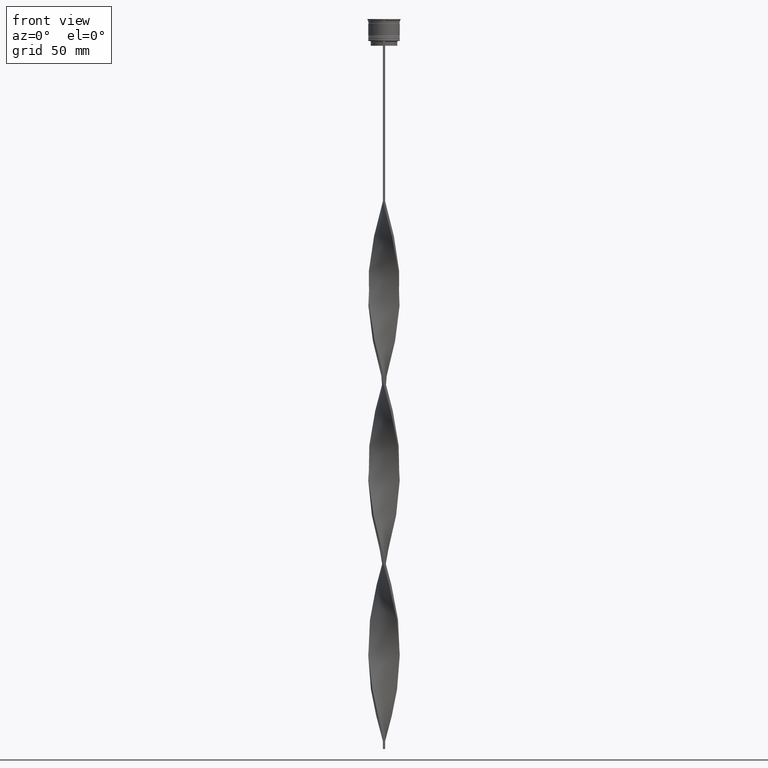
[diagram: clean part render]
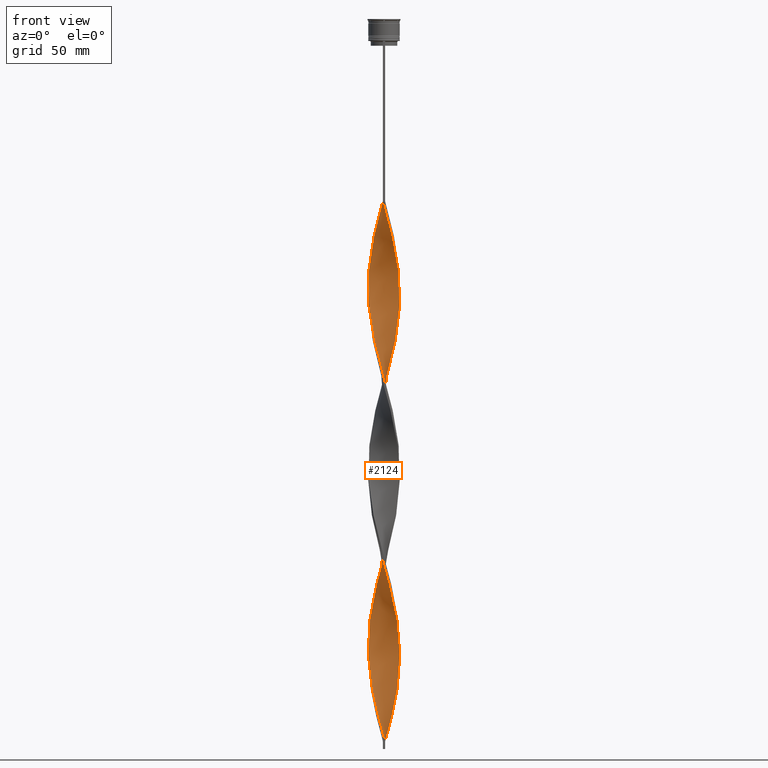
[diagram: same view with one face highlighted and labeled with its STEP entity id]
A machine part, front view. The second image highlights one B-rep face of the part: STEP entity #2124.
In plain terms, the highlighted face is a freeform B-spline surface patch.
Its self-contained STEP definition (entity closure, byte-faithful):
#6 = CARTESIAN_POINT ( 'NONE',  ( 0.7500000000000011102, 10.00000000000000533, -459.0000000000000000 ) ) ;
#8 = CARTESIAN_POINT ( 'NONE',  ( 9.791478290104363325, 2.165514464143547535, -292.6969696969697452 ) ) ;
#11 = CARTESIAN_POINT ( 'NONE',  ( 3.471926133502976963, -9.407881213296604983, -360.2575757575757507 ) ) ;
#18 = CARTESIAN_POINT ( 'NONE',  ( -0.03478588441202913606, -10.05364105866910052, -118.5984848484848442 ) ) ;
#23 = CARTESIAN_POINT ( 'NONE',  ( -4.144791077655438194, -9.159564155400586216, -212.1439393939393767 ) ) ;
#27 = CARTESIAN_POINT ( 'NONE',  ( 9.656198271192611315, 2.799061189350516621, -414.8257575757575637 ) ) ;
#36 = CARTESIAN_POINT ( 'NONE',  ( -7.066350193083618336, -7.115419520218543070, -427.8181818181818130 ) ) ;
#42 = CARTESIAN_POINT ( 'NONE',  ( 9.636597638877828942, -2.865814812699130965, -165.3712121212121247 ) ) ;
#47 = CARTESIAN_POINT ( 'NONE',  ( 0.7499999999999985567, -9.999999999999998224, -459.0000000000000000 ) ) ;
#54 = CARTESIAN_POINT ( 'NONE',  ( -9.159564155400587993, 4.144791077655436418, -383.6439393939393767 ) ) ;
#59 = CARTESIAN_POINT ( 'NONE',  ( 9.407881213296604983, 3.471926133502976075, -188.7575757575757507 ) ) ;
#64 = CARTESIAN_POINT ( 'NONE',  ( -9.130662998149976062, -4.208075784551208010, -414.8257575757575637 ) ) ;
#69 = CARTESIAN_POINT ( 'NONE',  ( -2.799061189350517509, 9.656198271192611315, -243.3257575757575637 ) ) ;
#85 = CARTESIAN_POINT ( 'NONE',  ( -8.818015941403507085, 4.775468024932590261, -381.0454545454545610 ) ) ;
#92 = CARTESIAN_POINT ( 'NONE',  ( 9.656198271192611315, 2.799061189350516621, -186.1590909090908781 ) ) ;
#96 = CARTESIAN_POINT ( 'NONE',  ( -9.130662998149976062, -4.208075784551207121, -414.8257575757575637 ) ) ;
#103 = CARTESIAN_POINT ( 'NONE',  ( 5.981795158687160274, -8.048641294001550150, -141.9848484848484986 ) ) ;
#112 = CARTESIAN_POINT ( 'NONE',  ( -6.557445345164569339, -7.620814860596662577, -430.4166666666666856 ) ) ;
#119 = CARTESIAN_POINT ( 'NONE',  ( -9.636597638877828942, 2.865814812699136738, -279.7045454545453822 ) ) ;
#128 = CARTESIAN_POINT ( 'NONE',  ( -10.00000000000000533, 0.7500000000000017764, -287.5000000000000568 ) ) ;
#135 = CARTESIAN_POINT ( 'NONE',  ( -9.159564155400587993, 4.144791077655436418, -383.6439393939393767 ) ) ;
#140 = CARTESIAN_POINT ( 'NONE',  ( 9.956260036359488197, 1.396350487056335243, -180.9621212121212182 ) ) ;
#148 = CARTESIAN_POINT ( 'NONE',  ( -7.066350193083621889, 7.115419520218548399, -261.5151515151515582 ) ) ;
#159 = CARTESIAN_POINT ( 'NONE',  ( 8.818015941403514191, 4.775468024932592925, -193.9545454545454675 ) ) ;
#183 = CARTESIAN_POINT ( 'NONE',  ( -6.610024179840423564, 7.575255041002665557, -139.3863636363635976 ) ) ;
#193 = CARTESIAN_POINT ( 'NONE',  ( -6.037348324179360404, 8.007054715220112584, -136.7878787878787818 ) ) ;
#203 = CARTESIAN_POINT ( 'NONE',  ( -1.465214115587969879, 9.946358941330903036, -118.5984848484848442 ) ) ;
#212 = CARTESIAN_POINT ( 'NONE',  ( -9.130662998149976062, -4.208075784551207121, -186.1590909090908781 ) ) ;
#223 = CARTESIAN_POINT ( 'NONE',  ( 9.806229153776049756, 2.097705838203425266, -412.2272727272727479 ) ) ;
#228 = CARTESIAN_POINT ( 'NONE',  ( -9.407881213296606759, -3.471926133502973411, -303.0909090909091219 ) ) ;
#250 = CARTESIAN_POINT ( 'NONE',  ( 8.476467727406435060, 5.406144972209746768, -425.2196969696969404 ) ) ;
#260 = CARTESIAN_POINT ( 'NONE',  ( -9.130662998149981391, 4.208075784551214227, -274.5075757575757507 ) ) ;
#264 = CARTESIAN_POINT ( 'NONE',  ( 8.818015941403510638, -4.775468024932587596, -266.7121212121212466 ) ) ;
#274 = CARTESIAN_POINT ( 'NONE',  ( 0.03478588441202860176, -10.05364105866909341, -227.7348484848484702 ) ) ;
#277 = CARTESIAN_POINT ( 'NONE',  ( -8.818015941403515967, -4.775468024932588484, -308.2878787878788103 ) ) ;
#283 = CARTESIAN_POINT ( 'NONE',  ( -1.396350487056333023, -9.956260036359481091, -222.5378787878787534 ) ) ;
#293 = CARTESIAN_POINT ( 'NONE',  ( -9.656198271192604210, 2.799061189350515289, -160.1742424242424647 ) ) ;
#299 = CARTESIAN_POINT ( 'NONE',  ( 0.7499999999999985567, -9.999999999999998224, -459.0000000000000000 ) ) ;
#302 = CARTESIAN_POINT ( 'NONE',  ( 9.956260036359481091, -1.396350487056338130, -279.7045454545454390 ) ) ;
#316 = CARTESIAN_POINT ( 'NONE',  ( 7.066350193083616560, 7.115419520218544847, -313.4848484848484986 ) ) ;
#322 = CARTESIAN_POINT ( 'NONE',  ( 8.007054715220117913, -6.037348324179365733, -152.3787878787879038 ) ) ;
#333 = CARTESIAN_POINT ( 'NONE',  ( -2.865814812699130076, 9.636597638877821836, -352.4621212121211897 ) ) ;
#343 = CARTESIAN_POINT ( 'NONE',  ( -2.799061189350513512, -9.656198271192605986, -217.3409090909090651 ) ) ;
#345 = CARTESIAN_POINT ( 'NONE',  ( 4.775468024932592925, -8.818015941403515967, -365.4545454545454959 ) ) ;
#359 = CARTESIAN_POINT ( 'NONE',  ( -8.784758693793767392, -4.836374126534751738, -188.7575757575757507 ) ) ;
#361 = CARTESIAN_POINT ( 'NONE',  ( 0.6807823013221530051, -10.00495054751429436, -121.1969696969697026 ) ) ;
#376 = CARTESIAN_POINT ( 'NONE',  ( -9.636597638877821836, -2.865814812699130520, -409.6287878787878185 ) ) ;
#384 = CARTESIAN_POINT ( 'NONE',  ( 9.130662998149981391, -4.208075784551211562, -388.8409090909090651 ) ) ;
#393 = CARTESIAN_POINT ( 'NONE',  ( -0.6807823013221521169, -10.00495054751428725, -453.8030303030303116 ) ) ;
#398 = CARTESIAN_POINT ( 'NONE',  ( 9.383630318513906943, -3.536945298625172374, -162.7727272727272805 ) ) ;
#403 = CARTESIAN_POINT ( 'NONE',  ( -1.465214115587969879, 9.946358941330903036, -347.2651515151514445 ) ) ;
#408 = CARTESIAN_POINT ( 'NONE',  ( -8.048641294001550150, -5.981795158687162051, -313.4848484848484986 ) ) ;
#412 = CARTESIAN_POINT ( 'NONE',  ( -9.656198271192604210, 2.799061189350515289, -388.8409090909090651 ) ) ;
#420 = CARTESIAN_POINT ( 'NONE',  ( -9.791478290104363325, -2.165514464143549311, -407.0303030303030027 ) ) ;
#426 = CARTESIAN_POINT ( 'NONE',  ( -9.946358941330910142, 1.465214115587967214, -284.9015151515151842 ) ) ;
#431 = DIRECTION ( 'NONE',  ( 0.000000000000000000, 1.000000000000000000, 0.000000000000000000 ) ) ;
#434 = CARTESIAN_POINT ( 'NONE',  ( 0.6807823013221528941, -10.00495054751429436, -121.1969696969697026 ) ) ;
#445 = CARTESIAN_POINT ( 'NONE',  ( 0.03478588441203066262, 10.05364105866910052, -232.9318181818181870 ) ) ;
#458 = CARTESIAN_POINT ( 'NONE',  ( -7.620814860596668794, -6.557445345164572004, -316.0833333333332575 ) ) ;
#466 = CARTESIAN_POINT ( 'NONE',  ( -6.037348324179360404, 8.007054715220112584, -365.4545454545454959 ) ) ;
#470 = CARTESIAN_POINT ( 'NONE',  ( 8.476467727406435060, 5.406144972209746768, -196.5530303030303116 ) ) ;
#476 = CARTESIAN_POINT ( 'NONE',  ( -1.396350487056331913, 9.956260036359488197, -238.1287878787878469 ) ) ;
#477 = CARTESIAN_POINT ( 'NONE',  ( -0.7499999999999997780, 9.999999999999998224, -116.0000000000000000 ) ) ;
#489 = CARTESIAN_POINT ( 'NONE',  ( -7.115419520218546623, -7.066350193083624553, -318.6818181818181870 ) ) ;
#497 = CARTESIAN_POINT ( 'NONE',  ( -9.383630318513899837, -3.536945298625169265, -183.5606060606060908 ) ) ;
#506 = CARTESIAN_POINT ( 'NONE',  ( 7.620814860596668794, 6.557445345164573780, -430.4166666666666856 ) ) ;
#533 = CARTESIAN_POINT ( 'NONE',  ( 9.130662998149983167, -4.208075784551211562, -388.8409090909090651 ) ) ;
#544 = CARTESIAN_POINT ( 'NONE',  ( -10.00495054751428725, 0.6807823013221516728, -167.9696969696969973 ) ) ;
#554 = CARTESIAN_POINT ( 'NONE',  ( -1.465214115587968102, -9.946358941330910142, -342.0681818181818699 ) ) ;
#558 = CARTESIAN_POINT ( 'NONE',  ( 8.476467727406435060, 5.406144972209746768, -196.5530303030303116 ) ) ;
#565 = CARTESIAN_POINT ( 'NONE',  ( -7.115419520218543070, 7.066350193083617448, -141.9848484848484986 ) ) ;
#576 = CARTESIAN_POINT ( 'NONE',  ( -2.865814812699137182, -9.636597638877828942, -336.8712121212120110 ) ) ;
#580 = CARTESIAN_POINT ( 'NONE',  ( -10.00495054751429613, -0.6807823013221500075, -292.6969696969697452 ) ) ;
#586 = CARTESIAN_POINT ( 'NONE',  ( 0.03478588441202859483, -10.05364105866909341, -227.7348484848484702 ) ) ;
#603 = CARTESIAN_POINT ( 'NONE',  ( 0.6807823013221530051, -10.00495054751429436, -349.8636363636363740 ) ) ;
#606 = CARTESIAN_POINT ( 'NONE',  ( -2.165514464143553308, -9.791478290104366877, -339.4696969696969973 ) ) ;
#611 = CARTESIAN_POINT ( 'NONE',  ( 7.575255041002667333, 6.610024179840422676, -310.8863636363635692 ) ) ;
#624 = CARTESIAN_POINT ( 'NONE',  ( 9.946358941330903036, 1.465214115587971877, -290.0984848484849294 ) ) ;
#628 = CARTESIAN_POINT ( 'NONE',  ( 7.066350193083622777, -7.115419520218548399, -375.8484848484848726 ) ) ;
#633 = CARTESIAN_POINT ( 'NONE',  ( 6.037348324179360404, -8.007054715220112584, -251.1212121212121247 ) ) ;
#644 = CARTESIAN_POINT ( 'NONE',  ( -9.130662998149976062, -4.208075784551208010, -186.1590909090908781 ) ) ;
#648 = CARTESIAN_POINT ( 'NONE',  ( 4.144791077655439082, -9.159564155400593322, -134.1893939393939661 ) ) ;
#653 = CARTESIAN_POINT ( 'NONE',  ( -0.03478588441203184223, 10.05364105866909341, -342.0681818181818130 ) ) ;
#663 = CARTESIAN_POINT ( 'NONE',  ( -5.406144972209744104, -8.476467727406427954, -206.9469696969697168 ) ) ;
#668 = CARTESIAN_POINT ( 'NONE',  ( 8.438854389437562276, -5.464672468518299908, -383.6439393939393767 ) ) ;
#676 = CARTESIAN_POINT ( 'NONE',  ( -7.620814860596662577, 6.557445345164569339, -373.2499999999999432 ) ) ;
#686 = CARTESIAN_POINT ( 'NONE',  ( -7.066350193083618336, -7.115419520218543070, -199.1515151515151558 ) ) ;
#688 = CARTESIAN_POINT ( 'NONE',  ( 8.784758693793772721, -4.836374126534756179, -386.2424242424242493 ) ) ;
#692 = CARTESIAN_POINT ( 'NONE',  ( -1.396350487056333023, -9.956260036359481091, -451.2045454545454959 ) ) ;
#694 = VERTEX_POINT ( 'NONE', #6 ) ;
#705 = CARTESIAN_POINT ( 'NONE',  ( -9.956260036359481091, 1.396350487056332357, -165.3712121212120962 ) ) ;
#708 = CARTESIAN_POINT ( 'NONE',  ( 8.476467727406435060, 5.406144972209746768, -425.2196969696969404 ) ) ;
#712 = CARTESIAN_POINT ( 'NONE',  ( -9.956260036359481091, 1.396350487056332579, -394.0378787878787534 ) ) ;
#716 = CARTESIAN_POINT ( 'NONE',  ( 9.806229153776049756, 2.097705838203425266, -183.5606060606060908 ) ) ;
#722 = CARTESIAN_POINT ( 'NONE',  ( -5.406144972209744104, -8.476467727406427954, -435.6136363636363171 ) ) ;
#727 = CARTESIAN_POINT ( 'NONE',  ( -9.159564155400593322, -4.144791077655439082, -305.6893939393939945 ) ) ;
#737 = CARTESIAN_POINT ( 'NONE',  ( -9.999999999999998224, -0.7499999999999991118, -401.8333333333333144 ) ) ;
#746 = CARTESIAN_POINT ( 'NONE',  ( -2.865814812699130076, 9.636597638877821836, -352.4621212121211329 ) ) ;
#752 = CARTESIAN_POINT ( 'NONE',  ( -6.037348324179363068, -8.007054715220117913, -323.8787878787878753 ) ) ;
#757 = CARTESIAN_POINT ( 'NONE',  ( -9.806229153776044427, 2.097705838203424378, -391.4393939393939945 ) ) ;
#768 = CARTESIAN_POINT ( 'NONE',  ( -9.383630318513899837, -3.536945298625169265, -412.2272727272727479 ) ) ;
#773 = CARTESIAN_POINT ( 'NONE',  ( -3.536945298625171930, -9.383630318513906943, -334.2727272727272521 ) ) ;
#777 = CARTESIAN_POINT ( 'NONE',  ( -8.438854389437555170, -5.464672468518296355, -420.0227272727271952 ) ) ;
#782 = CARTESIAN_POINT ( 'NONE',  ( 0.7500000000000011102, 10.00000000000000533, -230.3333333333333428 ) ) ;
#788 = CARTESIAN_POINT ( 'NONE',  ( -7.620814860596663465, 6.557445345164569339, -373.2499999999999432 ) ) ;
#793 = CARTESIAN_POINT ( 'NONE',  ( 6.610024179840430669, 7.575255041002670886, -206.9469696969697168 ) ) ;
#803 = CARTESIAN_POINT ( 'NONE',  ( -9.383630318513906943, 3.536945298625171930, -277.1060606060606233 ) ) ;
#812 = CARTESIAN_POINT ( 'NONE',  ( -7.115419520218543070, 7.066350193083617448, -370.6515151515151842 ) ) ;
#817 = CARTESIAN_POINT ( 'NONE',  ( 6.037348324179366621, 8.007054715220117913, -209.5454545454545610 ) ) ;
#825 = CARTESIAN_POINT ( 'NONE',  ( -9.636597638877828942, 2.865814812699136738, -279.7045454545454390 ) ) ;
#826 = CARTESIAN_POINT ( 'NONE',  ( -7.066350193083618336, -7.115419520218543070, -199.1515151515151558 ) ) ;
#838 = CARTESIAN_POINT ( 'NONE',  ( 9.946358941330910142, -1.465214115587970545, -399.2348484848484418 ) ) ;
#843 = VERTEX_POINT ( 'NONE', #1403 ) ;
#848 = CARTESIAN_POINT ( 'NONE',  ( -5.464672468518295467, 8.438854389437556947, -134.1893939393939377 ) ) ;
#859 = CARTESIAN_POINT ( 'NONE',  ( 10.00495054751429613, 0.6807823013221513397, -407.0303030303030027 ) ) ;
#883 = CARTESIAN_POINT ( 'NONE',  ( 2.097705838203425266, -9.806229153776049756, -355.0606060606060623 ) ) ;
#903 = CARTESIAN_POINT ( 'NONE',  ( 5.464672468518301685, 8.438854389437560499, -440.8106060606060055 ) ) ;
#907 = CARTESIAN_POINT ( 'NONE',  ( -3.471926133502978296, 9.407881213296603207, -245.9242424242424363 ) ) ;
#914 = CARTESIAN_POINT ( 'NONE',  ( 5.406144972209744992, 8.476467727406426178, -321.2803030303030027 ) ) ;
#924 = CARTESIAN_POINT ( 'NONE',  ( 9.407881213296604983, 3.471926133502976519, -417.4242424242424363 ) ) ;
#929 = CARTESIAN_POINT ( 'NONE',  ( -9.806229153776051533, -2.097705838203422157, -297.8939393939394336 ) ) ;
#936 = CARTESIAN_POINT ( 'NONE',  ( 8.784758693793769169, 4.836374126534749074, -303.0909090909091219 ) ) ;
#939 = CARTESIAN_POINT ( 'NONE',  ( 0.7500000000000011102, 10.00000000000000533, -459.0000000000000000 ) ) ;
#951 = CARTESIAN_POINT ( 'NONE',  ( 7.620814860596662577, -6.557445345164570227, -258.9166666666666288 ) ) ;
#957 = CARTESIAN_POINT ( 'NONE',  ( 3.471926133502977407, -9.407881213296604983, -131.5909090909090935 ) ) ;
#964 = CARTESIAN_POINT ( 'NONE',  ( -0.6807823013221521169, -10.00495054751428725, -225.1363636363636260 ) ) ;
#975 = CARTESIAN_POINT ( 'NONE',  ( 8.818015941403510638, -4.775468024932587596, -266.7121212121212466 ) ) ;
#978 = CARTESIAN_POINT ( 'NONE',  ( 7.575255041002671774, -6.610024179840428005, -378.4469696969697452 ) ) ;
#983 = CARTESIAN_POINT ( 'NONE',  ( 0.6807823013221536712, 10.00495054751428903, -339.4696969696969973 ) ) ;
#985 = CARTESIAN_POINT ( 'NONE',  ( 0.7499999999999985567, -9.999999999999998224, -459.0000000000000000 ) ) ;
#995 = CARTESIAN_POINT ( 'NONE',  ( -9.791478290104363325, -2.165514464143549311, -178.3636363636364024 ) ) ;
#998 = CARTESIAN_POINT ( 'NONE',  ( 8.784758693793772721, -4.836374126534756179, -157.5757575757575921 ) ) ;
#1005 = CARTESIAN_POINT ( 'NONE',  ( -4.836374126534752627, 8.784758693793767392, -360.2575757575757507 ) ) ;
#1014 = CARTESIAN_POINT ( 'NONE',  ( -1.396350487056332801, -9.956260036359481091, -222.5378787878787250 ) ) ;
#1022 = CARTESIAN_POINT ( 'NONE',  ( 8.438854389437562276, -5.464672468518299908, -154.9772727272727195 ) ) ;
#1038 = CARTESIAN_POINT ( 'NONE',  ( 4.836374126534753515, -8.784758693793767392, -245.9242424242424363 ) ) ;
#1040 = CARTESIAN_POINT ( 'NONE',  ( 9.956260036359488197, 1.396350487056335021, -409.6287878787878185 ) ) ;
#1045 = CARTESIAN_POINT ( 'NONE',  ( -8.007054715220110808, -6.037348324179360404, -422.6212121212121247 ) ) ;
#1050 = CARTESIAN_POINT ( 'NONE',  ( 4.775468024932592925, -8.818015941403515967, -136.7878787878787818 ) ) ;
#1060 = CARTESIAN_POINT ( 'NONE',  ( 0.7500000000000009992, 10.00000000000000533, -230.3333333333333428 ) ) ;
#1066 = CARTESIAN_POINT ( 'NONE',  ( -8.784758693793767392, -4.836374126534751738, -417.4242424242424363 ) ) ;
#1078 = CARTESIAN_POINT ( 'NONE',  ( -7.066350193083618336, -7.115419520218543070, -427.8181818181818130 ) ) ;
#1083 = CARTESIAN_POINT ( 'NONE',  ( 9.806229153776049756, 2.097705838203425266, -183.5606060606060908 ) ) ;
#1105 = CARTESIAN_POINT ( 'NONE',  ( -7.575255041002665557, -6.610024179840425340, -425.2196969696969404 ) ) ;
#1111 = CARTESIAN_POINT ( 'NONE',  ( -4.208075784551215115, -9.130662998149981391, -331.6742424242423795 ) ) ;
#1121 = CARTESIAN_POINT ( 'NONE',  ( 7.575255041002671774, -6.610024179840428005, -149.7803030303030312 ) ) ;
#1126 = CARTESIAN_POINT ( 'NONE',  ( -9.656198271192604210, 2.799061189350515289, -388.8409090909090651 ) ) ;
#1132 = CARTESIAN_POINT ( 'NONE',  ( 8.048641294001550150, 5.981795158687160274, -199.1515151515151558 ) ) ;
#1141 = CARTESIAN_POINT ( 'NONE',  ( 6.037348324179366621, 8.007054715220117913, -209.5454545454545610 ) ) ;
#1142 = CARTESIAN_POINT ( 'NONE',  ( -7.620814860596662577, 6.557445345164569339, -144.5833333333333428 ) ) ;
#1151 = CARTESIAN_POINT ( 'NONE',  ( -10.05364105866910052, 0.03478588441202674214, -290.0984848484849294 ) ) ;
#1164 = VERTEX_POINT ( 'NONE', #4307 ) ;
#1165 = CARTESIAN_POINT ( 'NONE',  ( 5.464672468518301685, 8.438854389437560499, -212.1439393939393767 ) ) ;
#1169 = CARTESIAN_POINT ( 'NONE',  ( -4.836374126534752627, 8.784758693793767392, -131.5909090909090935 ) ) ;
#1178 = CARTESIAN_POINT ( 'NONE',  ( -0.7499999999999997780, -10.00000000000000533, -344.6666666666666856 ) ) ;
#1198 = CARTESIAN_POINT ( 'NONE',  ( -7.620814860596663465, 6.557445345164569339, -144.5833333333333428 ) ) ;
#1206 = CARTESIAN_POINT ( 'NONE',  ( -9.956260036359481091, 1.396350487056332579, -165.3712121212121247 ) ) ;
#1218 = CARTESIAN_POINT ( 'NONE',  ( 5.981795158687160274, -8.048641294001550150, -370.6515151515151842 ) ) ;
#1232 = CARTESIAN_POINT ( 'NONE',  ( -7.575255041002665557, -6.610024179840424452, -196.5530303030303116 ) ) ;
#1246 = CARTESIAN_POINT ( 'NONE',  ( -7.115419520218543070, 7.066350193083617448, -141.9848484848484986 ) ) ;
#1252 = CARTESIAN_POINT ( 'NONE',  ( -9.946358941330908365, 1.465214115587967436, -284.9015151515151842 ) ) ;
#1258 = CARTESIAN_POINT ( 'NONE',  ( 3.471926133502974743, 9.407881213296597878, -329.0757575757575637 ) ) ;
#1269 = CARTESIAN_POINT ( 'NONE',  ( 1.396350487056334799, -9.956260036359488197, -352.4621212121211329 ) ) ;
#1274 = CARTESIAN_POINT ( 'NONE',  ( 2.165514464143551976, 9.791478290104366877, -225.1363636363636260 ) ) ;
#1281 = CARTESIAN_POINT ( 'NONE',  ( 9.159564155400586216, -4.144791077655439082, -269.3106060606060623 ) ) ;
#1295 = CARTESIAN_POINT ( 'NONE',  ( -9.946358941330903036, -1.465214115587968990, -175.7651515151515014 ) ) ;
#1298 = CARTESIAN_POINT ( 'NONE',  ( -8.476467727406435060, -5.406144972209744992, -310.8863636363635692 ) ) ;
#1304 = CARTESIAN_POINT ( 'NONE',  ( 1.465214115587968324, -9.946358941330901260, -232.9318181818181870 ) ) ;
#1320 = CARTESIAN_POINT ( 'NONE',  ( -9.383630318513899837, -3.536945298625169265, -183.5606060606060908 ) ) ;
#1324 = CARTESIAN_POINT ( 'NONE',  ( 5.981795158687160274, -8.048641294001550150, -370.6515151515151842 ) ) ;
#1330 = CARTESIAN_POINT ( 'NONE',  ( 4.144791077655439082, 9.159564155400586216, -326.4772727272727479 ) ) ;
#1331 = CARTESIAN_POINT ( 'NONE',  ( 0.7500000000000002220, 3.333333333333337478, -459.0000000000000000 ) ) ;
#1341 = CARTESIAN_POINT ( 'NONE',  ( 3.536945298625166156, -9.383630318513901614, -240.7272727272727479 ) ) ;
#1343 = CARTESIAN_POINT ( 'NONE',  ( 7.066350193083622777, -7.115419520218548399, -147.1818181818181870 ) ) ;
#1347 = CARTESIAN_POINT ( 'NONE',  ( 9.656198271192604210, -2.799061189350517953, -274.5075757575757507 ) ) ;
#1357 = CARTESIAN_POINT ( 'NONE',  ( 4.208075784551209786, -9.130662998149976062, -243.3257575757575637 ) ) ;
#1360 = CARTESIAN_POINT ( 'NONE',  ( 2.799061189350517065, -9.656198271192611315, -357.6590909090909349 ) ) ;
#1370 = CARTESIAN_POINT ( 'NONE',  ( 10.05364105866910052, -0.03478588441203001036, -175.7651515151515014 ) ) ;
#1380 = CARTESIAN_POINT ( 'NONE',  ( 6.037348324179360404, -8.007054715220112584, -251.1212121212121247 ) ) ;
#1388 = CARTESIAN_POINT ( 'NONE',  ( 10.00000000000000533, -0.7500000000000005551, -401.8333333333333144 ) ) ;
#1396 = CARTESIAN_POINT ( 'NONE',  ( -5.981795158687156722, -8.048641294001544821, -433.0151515151515014 ) ) ;
#1403 = CARTESIAN_POINT ( 'NONE',  ( -0.7499999999999998890, -10.00000000000000533, -116.0000000000000000 ) ) ;
#1408 = CARTESIAN_POINT ( 'NONE',  ( 1.465214115587971433, 9.946358941330908365, -456.4015151515151274 ) ) ;
#1414 = CARTESIAN_POINT ( 'NONE',  ( -4.775468024932591149, -8.818015941403507085, -438.2121212121212466 ) ) ;
#1429 = CARTESIAN_POINT ( 'NONE',  ( -6.557445345164573780, 7.620814860596669682, -258.9166666666666288 ) ) ;
#1444 = CARTESIAN_POINT ( 'NONE',  ( -5.981795158687156722, -8.048641294001544821, -433.0151515151515014 ) ) ;
#1450 = CARTESIAN_POINT ( 'NONE',  ( -9.130662998149981391, 4.208075784551215115, -274.5075757575757507 ) ) ;
#1458 = CARTESIAN_POINT ( 'NONE',  ( -4.144791077655437306, -9.159564155400586216, -440.8106060606060055 ) ) ;
#1464 = CARTESIAN_POINT ( 'NONE',  ( 6.557445345164574668, -7.620814860596667906, -144.5833333333333428 ) ) ;
#1470 = CARTESIAN_POINT ( 'NONE',  ( -10.05364105866909341, -0.03478588441202934423, -399.2348484848484418 ) ) ;
#1477 = CARTESIAN_POINT ( 'NONE',  ( 9.946358941330910142, -1.465214115587970545, -170.5681818181818414 ) ) ;
#1485 = CARTESIAN_POINT ( 'NONE',  ( 2.865814812699131853, 9.636597638877828942, -222.5378787878787534 ) ) ;
#1492 = CARTESIAN_POINT ( 'NONE',  ( -0.7499999999999997780, 9.999999999999998224, -344.6666666666666856 ) ) ;
#1496 = CARTESIAN_POINT ( 'NONE',  ( -3.471926133502978296, 9.407881213296603207, -245.9242424242424363 ) ) ;
#1506 = CARTESIAN_POINT ( 'NONE',  ( 0.6807823013221528941, -10.00495054751429436, -349.8636363636363740 ) ) ;
#1507 = CARTESIAN_POINT ( 'NONE',  ( -8.048641294001546598, 5.981795158687156722, -147.1818181818181870 ) ) ;
#1517 = CARTESIAN_POINT ( 'NONE',  ( 0.7500000000000009992, 10.00000000000000533, -459.0000000000000000 ) ) ;
#1535 =( BOUNDED_CURVE ( )  B_SPLINE_CURVE ( 2, ( #3515, #18, #434, #4117, #1728, #1799, #4207, #3118, #1050, #3469, #103, #1464, #3868, #1121, #2752, #2494, #2048, #3800, #398, #42, #1756, #1707, #3094, #1370, #2779, #4135, #716, #3143, #59, #3561, #2541, #558, #1972, #2665, #3000, #3657, #1141, #1165, #3332, #3353, #4357, #1485, #1274, #3913, #782, #1584, #4017, #476, #3309, #2623, #907, #3022, #2159, #2515, #3997, #4334, #148, #2205, #2863, #3889, #2286, #260, #803, #825, #2979, #1252, #128, #2886, #580, #2643, #929, #3535, #228, #2187, #277, #1298, #1946, #458, #1829, #3214, #1612, #2308, #3582, #3683, #4227, #1846, #606, #1634, #4378, #3232, #1506, #4247, #1924, #1360, #11, #2695, #345, #1678, #1324, #1698, #628, #978, #2057, #668, #688, #384, #3067, #3792, #2010, #4101, #1388, #2420, #4124, #1040, #2766, #27, #3041, #2741, #1652, #708, #3434, #1717, #4407, #2356, #2079, #1746, #3725, #4427, #4082, #3104, #3455, #1408, #3133 ),
 .UNSPECIFIED., .F., .T. ) 
 B_SPLINE_CURVE_WITH_KNOTS ( ( 3, 2, 2, 2, 2, 2, 2, 2, 2, 2, 2, 2, 2, 2, 2, 2, 2, 2, 2, 2, 2, 2, 2, 2, 2, 2, 2, 2, 2, 2, 2, 2, 2, 2, 2, 2, 2, 2, 2, 2, 2, 2, 2, 2, 2, 2, 2, 2, 2, 2, 2, 2, 2, 2, 2, 2, 2, 2, 2, 2, 2, 2, 2, 2, 2, 2, 3 ),
 ( 0.000000000000000000, 0.01136363636363636222, 0.02272727272727272443, 0.03409090909090908839, 0.04545454545454544887, 0.05681818181818181629, 0.06818181818181817677, 0.07954545454545454419, 0.09090909090909089774, 0.1022727272727272790, 0.1136363636363636326, 0.1250000000000000000, 0.1363636363636363535, 0.1477272727272727348, 0.1590909090909090884, 0.1704545454545454419, 0.1818181818181817955, 0.1931818181818182045, 0.2045454545454545581, 0.2159090909090909116, 0.2272727272727272652, 0.2386363636363636465, 0.2500000000000000000, 0.2613636363636363535, 0.2727272727272727071, 0.2840909090909091161, 0.2954545454545454697, 0.3068181818181818232, 0.3181818181818181768, 0.3295454545454545303, 0.3409090909090908839, 0.3522727272727272929, 0.3636363636363635909, 0.3750000000000000000, 0.3863636363636364091, 0.3977272727272727071, 0.4090909090909091161, 0.4204545454545454697, 0.4318181818181818232, 0.4431818181818181768, 0.4545454545454545303, 0.4659090909090908839, 0.4772727272727272929, 0.4886363636363635909, 0.5000000000000000000, 0.5113636363636363535, 0.5227272727272727071, 0.5340909090909090606, 0.5454545454545454142, 0.5568181818181817677, 0.5681818181818182323, 0.5795454545454545858, 0.5909090909090909394, 0.6022727272727272929, 0.6136363636363636465, 0.6250000000000000000, 0.6363636363636363535, 0.6477272727272727071, 0.6590909090909090606, 0.6704545454545454142, 0.6818181818181817677, 0.6931818181818182323, 0.7045454545454545858, 0.7159090909090909394, 0.7272727272727271819, 0.7386363636363636465, 0.7500000000000000000 ),
 .UNSPECIFIED. ) 
 CURVE ( )  GEOMETRIC_REPRESENTATION_ITEM ( )  RATIONAL_B_SPLINE_CURVE ( ( 1.000000000000000000, 0.9974521146102535152, 1.000000000000000000, 0.9974521146102535152, 1.000000000000000000, 0.9974521146102535152, 1.000000000000000000, 0.9974521146102535152, 1.000000000000000000, 0.9974521146102535152, 1.000000000000000000, 0.9974521146102535152, 1.000000000000000000, 0.9974521146102535152, 1.000000000000000000, 0.9974521146102535152, 1.000000000000000000, 0.9974521146102535152, 1.000000000000000000, 0.9974521146102535152, 1.000000000000000000, 0.9974521146102535152, 1.000000000000000000, 0.9974521146102535152, 1.000000000000000000, 0.9974521146102535152, 1.000000000000000000, 0.9974521146102535152, 1.000000000000000000, 0.9974521146102535152, 1.000000000000000000, 0.9974521146102535152, 1.000000000000000000, 0.9974521146102535152, 1.000000000000000000, 0.9974521146102535152, 1.000000000000000000, 0.9974521146102535152, 1.000000000000000000, 0.9974521146102535152, 1.000000000000000000, 0.9974521146102535152, 1.000000000000000000, 0.9974521146102535152, 1.000000000000000000, 0.9974521146102535152, 1.000000000000000000, 0.9974521146102535152, 1.000000000000000000, 0.9974521146102535152, 1.000000000000000000, 0.9974521146102535152, 1.000000000000000000, 0.9974521146102535152, 1.000000000000000000, 0.9974521146102535152, 1.000000000000000000, 0.9974521146102535152, 1.000000000000000000, 0.9974521146102535152, 1.000000000000000000, 0.9974521146102535152, 1.000000000000000000, 0.9974521146102535152, 1.000000000000000000, 0.9974521146102535152, 1.000000000000000000, 0.9974521146102535152, 1.000000000000000000, 0.9974521146102535152, 1.000000000000000000, 0.9974521146102535152, 1.000000000000000000, 0.9974521146102535152, 1.000000000000000000, 0.9974521146102535152, 1.000000000000000000, 0.9974521146102535152, 1.000000000000000000, 0.9974521146102535152, 1.000000000000000000, 0.9974521146102535152, 1.000000000000000000, 0.9974521146102535152, 1.000000000000000000, 0.9974521146102535152, 1.000000000000000000, 0.9974521146102535152, 1.000000000000000000, 0.9974521146102535152, 1.000000000000000000, 0.9974521146102535152, 1.000000000000000000, 0.9974521146102535152, 1.000000000000000000, 0.9974521146102535152, 1.000000000000000000, 0.9974521146102535152, 1.000000000000000000, 0.9974521146102535152, 1.000000000000000000, 0.9974521146102535152, 1.000000000000000000, 0.9974521146102535152, 1.000000000000000000, 0.9974521146102535152, 1.000000000000000000, 0.9974521146102535152, 1.000000000000000000, 0.9974521146102535152, 1.000000000000000000, 0.9974521146102535152, 1.000000000000000000, 0.9974521146102535152, 1.000000000000000000, 0.9974521146102535152, 1.000000000000000000, 0.9974521146102535152, 1.000000000000000000, 0.9974521146102535152, 1.000000000000000000, 0.9974521146102535152, 1.000000000000000000, 0.9974521146102535152, 1.000000000000000000, 0.9974521146102535152, 1.000000000000000000, 0.9974521146102535152, 1.000000000000000000, 0.9974521146102535152, 1.000000000000000000, 0.9974521146102535152, 1.000000000000000000 ) ) 
 REPRESENTATION_ITEM ( '' )  );
#1544 = CARTESIAN_POINT ( 'NONE',  ( 3.471926133502977407, -9.407881213296604983, -360.2575757575757507 ) ) ;
#1552 = CARTESIAN_POINT ( 'NONE',  ( -8.476467727406427954, 5.406144972209743216, -149.7803030303030312 ) ) ;
#1561 = CARTESIAN_POINT ( 'NONE',  ( -2.165514464143550200, 9.791478290104361548, -121.1969696969697026 ) ) ;
#1569 = CARTESIAN_POINT ( 'NONE',  ( -4.208075784551208010, 9.130662998149976062, -128.9924242424242209 ) ) ;
#1581 = CARTESIAN_POINT ( 'NONE',  ( 9.791478290104368654, -2.165514464143551088, -396.6363636363636260 ) ) ;
#1584 = CARTESIAN_POINT ( 'NONE',  ( 0.03478588441203076670, 10.05364105866910052, -232.9318181818181870 ) ) ;
#1594 = CARTESIAN_POINT ( 'NONE',  ( -1.465214115587969879, 9.946358941330901260, -347.2651515151514445 ) ) ;
#1607 = CARTESIAN_POINT ( 'NONE',  ( 9.159564155400593322, 4.144791077655439970, -420.0227272727271952 ) ) ;
#1612 = CARTESIAN_POINT ( 'NONE',  ( -6.037348324179363068, -8.007054715220117913, -323.8787878787878753 ) ) ;
#1617 = CARTESIAN_POINT ( 'NONE',  ( 10.00495054751428903, -0.6807823013221527830, -282.3030303030303116 ) ) ;
#1624 =( BOUNDED_CURVE ( )  B_SPLINE_CURVE ( 2, ( #477, #1912, #2914, #2865, #1891, #1569, #1169, #848, #193, #2933, #565, #1142, #1507, #1552, #4292, #2206, #3932, #3233, #2887, #1206, #544, #2543, #2581, #3625, #3296, #2188, #497, #212, #2954, #4312, #3914, #1232, #826, #2270, #3583, #2607, #3644, #1931, #2630, #2342, #3711, #283, #964, #586, #3731, #1304, #2986, #4068, #1684, #2701, #3073, #1640, #633, #1954, #3339, #1997, #2725, #3051, #264, #1281, #3689, #1347, #3379, #302, #1617, #2361, #4004, #3422, #2677, #4339, #1659, #3029, #936, #3007, #2383, #611, #4087, #4024, #4416, #914, #1976, #1330, #1258, #2319, #3358, #4365, #983, #653, #2017, #1594, #3403, #333, #2293, #4434, #1005, #3664, #3756, #2651, #4388, #676, #2045, #4051, #1723, #54, #3818, #412, #757, #712, #3795, #4129, #737, #2837, #3111, #3845, #2082, #96, #1066, #777, #1045, #1793, #36, #2134, #1396, #3463, #1414, #1458, #2155, #2469, #3159, #692, #393, #2813, #4201 ),
 .UNSPECIFIED., .F., .T. ) 
 B_SPLINE_CURVE_WITH_KNOTS ( ( 3, 2, 2, 2, 2, 2, 2, 2, 2, 2, 2, 2, 2, 2, 2, 2, 2, 2, 2, 2, 2, 2, 2, 2, 2, 2, 2, 2, 2, 2, 2, 2, 2, 2, 2, 2, 2, 2, 2, 2, 2, 2, 2, 2, 2, 2, 2, 2, 2, 2, 2, 2, 2, 2, 2, 2, 2, 2, 2, 2, 2, 2, 2, 2, 2, 2, 3 ),
 ( 0.000000000000000000, 0.01136363636363636222, 0.02272727272727272443, 0.03409090909090908839, 0.04545454545454544887, 0.05681818181818181629, 0.06818181818181817677, 0.07954545454545454419, 0.09090909090909089774, 0.1022727272727272790, 0.1136363636363636326, 0.1250000000000000000, 0.1363636363636363535, 0.1477272727272727348, 0.1590909090909090884, 0.1704545454545454419, 0.1818181818181817955, 0.1931818181818182045, 0.2045454545454545581, 0.2159090909090909116, 0.2272727272727272652, 0.2386363636363636465, 0.2500000000000000000, 0.2613636363636363535, 0.2727272727272727071, 0.2840909090909091161, 0.2954545454545454697, 0.3068181818181818232, 0.3181818181818181768, 0.3295454545454545303, 0.3409090909090908839, 0.3522727272727272929, 0.3636363636363635909, 0.3750000000000000000, 0.3863636363636364091, 0.3977272727272727071, 0.4090909090909091161, 0.4204545454545454697, 0.4318181818181818232, 0.4431818181818181768, 0.4545454545454545303, 0.4659090909090908839, 0.4772727272727272929, 0.4886363636363635909, 0.5000000000000000000, 0.5113636363636363535, 0.5227272727272727071, 0.5340909090909090606, 0.5454545454545454142, 0.5568181818181817677, 0.5681818181818182323, 0.5795454545454545858, 0.5909090909090909394, 0.6022727272727272929, 0.6136363636363636465, 0.6250000000000000000, 0.6363636363636363535, 0.6477272727272727071, 0.6590909090909090606, 0.6704545454545454142, 0.6818181818181817677, 0.6931818181818182323, 0.7045454545454545858, 0.7159090909090909394, 0.7272727272727271819, 0.7386363636363636465, 0.7500000000000000000 ),
 .UNSPECIFIED. ) 
 CURVE ( )  GEOMETRIC_REPRESENTATION_ITEM ( )  RATIONAL_B_SPLINE_CURVE ( ( 1.000000000000000000, 0.9974521146102535152, 1.000000000000000000, 0.9974521146102535152, 1.000000000000000000, 0.9974521146102535152, 1.000000000000000000, 0.9974521146102535152, 1.000000000000000000, 0.9974521146102535152, 1.000000000000000000, 0.9974521146102535152, 1.000000000000000000, 0.9974521146102535152, 1.000000000000000000, 0.9974521146102535152, 1.000000000000000000, 0.9974521146102535152, 1.000000000000000000, 0.9974521146102535152, 1.000000000000000000, 0.9974521146102535152, 1.000000000000000000, 0.9974521146102535152, 1.000000000000000000, 0.9974521146102535152, 1.000000000000000000, 0.9974521146102535152, 1.000000000000000000, 0.9974521146102535152, 1.000000000000000000, 0.9974521146102535152, 1.000000000000000000, 0.9974521146102535152, 1.000000000000000000, 0.9974521146102535152, 1.000000000000000000, 0.9974521146102535152, 1.000000000000000000, 0.9974521146102535152, 1.000000000000000000, 0.9974521146102535152, 1.000000000000000000, 0.9974521146102535152, 1.000000000000000000, 0.9974521146102535152, 1.000000000000000000, 0.9974521146102535152, 1.000000000000000000, 0.9974521146102535152, 1.000000000000000000, 0.9974521146102535152, 1.000000000000000000, 0.9974521146102535152, 1.000000000000000000, 0.9974521146102535152, 1.000000000000000000, 0.9974521146102535152, 1.000000000000000000, 0.9974521146102535152, 1.000000000000000000, 0.9974521146102535152, 1.000000000000000000, 0.9974521146102535152, 1.000000000000000000, 0.9974521146102535152, 1.000000000000000000, 0.9974521146102535152, 1.000000000000000000, 0.9974521146102535152, 1.000000000000000000, 0.9974521146102535152, 1.000000000000000000, 0.9974521146102535152, 1.000000000000000000, 0.9974521146102535152, 1.000000000000000000, 0.9974521146102535152, 1.000000000000000000, 0.9974521146102535152, 1.000000000000000000, 0.9974521146102535152, 1.000000000000000000, 0.9974521146102535152, 1.000000000000000000, 0.9974521146102535152, 1.000000000000000000, 0.9974521146102535152, 1.000000000000000000, 0.9974521146102535152, 1.000000000000000000, 0.9974521146102535152, 1.000000000000000000, 0.9974521146102535152, 1.000000000000000000, 0.9974521146102535152, 1.000000000000000000, 0.9974521146102535152, 1.000000000000000000, 0.9974521146102535152, 1.000000000000000000, 0.9974521146102535152, 1.000000000000000000, 0.9974521146102535152, 1.000000000000000000, 0.9974521146102535152, 1.000000000000000000, 0.9974521146102535152, 1.000000000000000000, 0.9974521146102535152, 1.000000000000000000, 0.9974521146102535152, 1.000000000000000000, 0.9974521146102535152, 1.000000000000000000, 0.9974521146102535152, 1.000000000000000000, 0.9974521146102535152, 1.000000000000000000, 0.9974521146102535152, 1.000000000000000000, 0.9974521146102535152, 1.000000000000000000, 0.9974521146102535152, 1.000000000000000000, 0.9974521146102535152, 1.000000000000000000, 0.9974521146102535152, 1.000000000000000000, 0.9974521146102535152, 1.000000000000000000, 0.9974521146102535152, 1.000000000000000000 ) ) 
 REPRESENTATION_ITEM ( '' )  );
#1631 = CARTESIAN_POINT ( 'NONE',  ( -8.007054715220110808, -6.037348324179360404, -193.9545454545454675 ) ) ;
#1634 = CARTESIAN_POINT ( 'NONE',  ( -1.465214115587968102, -9.946358941330908365, -342.0681818181818130 ) ) ;
#1640 = CARTESIAN_POINT ( 'NONE',  ( 5.464672468518296355, -8.438854389437556947, -248.5227272727272521 ) ) ;
#1650 = CARTESIAN_POINT ( 'NONE',  ( -2.097705838203423490, -9.806229153776044427, -219.9393939393939377 ) ) ;
#1652 = CARTESIAN_POINT ( 'NONE',  ( 8.818015941403514191, 4.775468024932592925, -422.6212121212121247 ) ) ;
#1659 = CARTESIAN_POINT ( 'NONE',  ( 9.383630318513901614, 3.536945298625165712, -297.8939393939394336 ) ) ;
#1675 = CARTESIAN_POINT ( 'NONE',  ( 6.557445345164570227, 7.620814860596661688, -316.0833333333332575 ) ) ;
#1678 = CARTESIAN_POINT ( 'NONE',  ( 5.406144972209745880, -8.476467727406435060, -368.0530303030302548 ) ) ;
#1684 = CARTESIAN_POINT ( 'NONE',  ( 3.536945298625166156, -9.383630318513901614, -240.7272727272727479 ) ) ;
#1696 = CARTESIAN_POINT ( 'NONE',  ( 7.115419520218543070, -7.066350193083619224, -256.3181818181818130 ) ) ;
#1698 = CARTESIAN_POINT ( 'NONE',  ( 6.557445345164574668, -7.620814860596667906, -373.2499999999999432 ) ) ;
#1707 = CARTESIAN_POINT ( 'NONE',  ( 9.946358941330908365, -1.465214115587970767, -170.5681818181818414 ) ) ;
#1714 = CARTESIAN_POINT ( 'NONE',  ( 9.956260036359481091, -1.396350487056338352, -279.7045454545453822 ) ) ;
#1717 = CARTESIAN_POINT ( 'NONE',  ( 7.620814860596667906, 6.557445345164573780, -430.4166666666666856 ) ) ;
#1723 = CARTESIAN_POINT ( 'NONE',  ( -8.818015941403507085, 4.775468024932590261, -381.0454545454545610 ) ) ;
#1728 = CARTESIAN_POINT ( 'NONE',  ( 2.097705838203425266, -9.806229153776049756, -126.3939393939393909 ) ) ;
#1737 = CARTESIAN_POINT ( 'NONE',  ( -8.784758693793767392, -4.836374126534751738, -417.4242424242424363 ) ) ;
#1746 = CARTESIAN_POINT ( 'NONE',  ( 5.464672468518301685, 8.438854389437560499, -440.8106060606060055 ) ) ;
#1750 = ORIENTED_EDGE ( 'NONE', *, *, #3840, .T. ) ;
#1756 = CARTESIAN_POINT ( 'NONE',  ( 9.791478290104368654, -2.165514464143551088, -167.9696969696969973 ) ) ;
#1762 = CARTESIAN_POINT ( 'NONE',  ( -8.048641294001546598, 5.981795158687156722, -375.8484848484848726 ) ) ;
#1766 = CARTESIAN_POINT ( 'NONE',  ( -7.620814860596669682, -6.557445345164572004, -316.0833333333332575 ) ) ;
#1783 = CARTESIAN_POINT ( 'NONE',  ( -2.097705838203423490, -9.806229153776044427, -448.6060606060606233 ) ) ;
#1788 = CARTESIAN_POINT ( 'NONE',  ( -5.981795158687159386, 8.048641294001550150, -256.3181818181818130 ) ) ;
#1793 = CARTESIAN_POINT ( 'NONE',  ( -7.575255041002665557, -6.610024179840424452, -425.2196969696969404 ) ) ;
#1799 = CARTESIAN_POINT ( 'NONE',  ( 2.799061189350517065, -9.656198271192611315, -128.9924242424242209 ) ) ;
#1805 = CARTESIAN_POINT ( 'NONE',  ( -9.806229153776044427, 2.097705838203424378, -391.4393939393939945 ) ) ;
#1813 = CARTESIAN_POINT ( 'NONE',  ( -4.144791077655439970, 9.159564155400593322, -248.5227272727272521 ) ) ;
#1823 = LINE ( 'NONE', #1885, #3054 ) ;
#1829 = CARTESIAN_POINT ( 'NONE',  ( -7.115419520218546623, -7.066350193083624553, -318.6818181818181870 ) ) ;
#1835 = CARTESIAN_POINT ( 'NONE',  ( -4.775468024932591149, -8.818015941403507085, -438.2121212121212466 ) ) ;
#1840 = CARTESIAN_POINT ( 'NONE',  ( 5.464672468518301685, 8.438854389437560499, -212.1439393939393767 ) ) ;
#1846 = CARTESIAN_POINT ( 'NONE',  ( -2.865814812699137182, -9.636597638877828942, -336.8712121212120678 ) ) ;
#1857 = CARTESIAN_POINT ( 'NONE',  ( -6.610024179840431557, -7.575255041002669110, -321.2803030303030596 ) ) ;
#1874 = CARTESIAN_POINT ( 'NONE',  ( -4.208075784551208898, 9.130662998149976062, -128.9924242424241925 ) ) ;
#1885 = CARTESIAN_POINT ( 'NONE',  ( -0.7499999999999997780, -10.00000000000000533, -116.0000000000000000 ) ) ;
#1891 = CARTESIAN_POINT ( 'NONE',  ( -3.536945298625169265, 9.383630318513899837, -126.3939393939393909 ) ) ;
#1902 = CARTESIAN_POINT ( 'NONE',  ( 10.00000000000000533, -0.7500000000000004441, -401.8333333333333144 ) ) ;
#1912 = CARTESIAN_POINT ( 'NONE',  ( -1.465214115587969879, 9.946358941330901260, -118.5984848484848442 ) ) ;
#1921 = CARTESIAN_POINT ( 'NONE',  ( 2.799061189350517065, -9.656198271192611315, -357.6590909090909918 ) ) ;
#1924 = CARTESIAN_POINT ( 'NONE',  ( 2.097705838203425266, -9.806229153776049756, -355.0606060606060623 ) ) ;
#1931 = CARTESIAN_POINT ( 'NONE',  ( -4.144791077655437306, -9.159564155400586216, -212.1439393939393767 ) ) ;
#1942 = CARTESIAN_POINT ( 'NONE',  ( -2.165514464143552864, -9.791478290104366877, -339.4696969696969973 ) ) ;
#1946 = CARTESIAN_POINT ( 'NONE',  ( -8.048641294001550150, -5.981795158687162051, -313.4848484848484986 ) ) ;
#1954 = CARTESIAN_POINT ( 'NONE',  ( 6.610024179840422676, -7.575255041002665557, -253.7196969696969973 ) ) ;
#1968 = CARTESIAN_POINT ( 'NONE',  ( 6.037348324179366621, 8.007054715220117913, -438.2121212121212466 ) ) ;
#1972 = CARTESIAN_POINT ( 'NONE',  ( 8.048641294001550150, 5.981795158687159386, -199.1515151515151558 ) ) ;
#1976 = CARTESIAN_POINT ( 'NONE',  ( 4.775468024932587596, 8.818015941403508862, -323.8787878787878753 ) ) ;
#1987 = CARTESIAN_POINT ( 'NONE',  ( 9.636597638877821836, 2.865814812699131409, -295.2954545454545041 ) ) ;
#1991 = CARTESIAN_POINT ( 'NONE',  ( 1.396350487056334799, -9.956260036359488197, -123.7954545454545325 ) ) ;
#1997 = CARTESIAN_POINT ( 'NONE',  ( 7.620814860596661688, -6.557445345164570227, -258.9166666666666288 ) ) ;
#2007 = CARTESIAN_POINT ( 'NONE',  ( 8.048641294001544821, -5.981795158687156722, -261.5151515151515582 ) ) ;
#2010 = CARTESIAN_POINT ( 'NONE',  ( 9.791478290104368654, -2.165514464143551088, -396.6363636363636260 ) ) ;
#2017 = CARTESIAN_POINT ( 'NONE',  ( -0.7499999999999997780, 9.999999999999998224, -344.6666666666666856 ) ) ;
#2035 = CARTESIAN_POINT ( 'NONE',  ( -3.471926133502973855, -9.407881213296597878, -214.7424242424242209 ) ) ;
#2038 = CARTESIAN_POINT ( 'NONE',  ( 5.406144972209745880, -8.476467727406435060, -139.3863636363635976 ) ) ;
#2045 = CARTESIAN_POINT ( 'NONE',  ( -8.048641294001546598, 5.981795158687156722, -375.8484848484848726 ) ) ;
#2048 = CARTESIAN_POINT ( 'NONE',  ( 8.784758693793772721, -4.836374126534756179, -157.5757575757575921 ) ) ;
#2055 = CARTESIAN_POINT ( 'NONE',  ( 9.656198271192604210, -2.799061189350518397, -274.5075757575757507 ) ) ;
#2057 = CARTESIAN_POINT ( 'NONE',  ( 8.007054715220117913, -6.037348324179365733, -381.0454545454545610 ) ) ;
#2074 = CARTESIAN_POINT ( 'NONE',  ( -9.999999999999998224, -0.7499999999999991118, -173.1666666666666856 ) ) ;
#2079 = CARTESIAN_POINT ( 'NONE',  ( 6.037348324179366621, 8.007054715220117913, -438.2121212121212466 ) ) ;
#2082 = CARTESIAN_POINT ( 'NONE',  ( -9.383630318513899837, -3.536945298625169265, -412.2272727272727479 ) ) ;
#2096 = CARTESIAN_POINT ( 'NONE',  ( -1.396350487056332801, -9.956260036359481091, -451.2045454545454959 ) ) ;
#2106 = CARTESIAN_POINT ( 'NONE',  ( -9.791478290104366877, 2.165514464143551976, -282.3030303030303116 ) ) ;
#2107 = EDGE_CURVE ( 'NONE', #843, #694, #1535, .T. ) ;
#2121 = CARTESIAN_POINT ( 'NONE',  ( -8.476467727406427954, 5.406144972209743216, -378.4469696969697452 ) ) ;
#2124 = ADVANCED_FACE ( 'NONE', ( #2717 ), #2280, .T. ) ;
#2127 = CARTESIAN_POINT ( 'NONE',  ( -0.6807823013221504516, 10.00495054751429613, -235.5303030303030312 ) ) ;
#2134 = CARTESIAN_POINT ( 'NONE',  ( -6.557445345164569339, -7.620814860596661688, -430.4166666666666856 ) ) ;
#2144 = CARTESIAN_POINT ( 'NONE',  ( -4.144791077655438194, -9.159564155400586216, -440.8106060606060055 ) ) ;
#2149 = CARTESIAN_POINT ( 'NONE',  ( -4.775468024932592925, 8.818015941403515967, -251.1212121212121247 ) ) ;
#2155 = CARTESIAN_POINT ( 'NONE',  ( -3.471926133502973855, -9.407881213296597878, -443.4090909090909349 ) ) ;
#2159 = CARTESIAN_POINT ( 'NONE',  ( -4.775468024932592925, 8.818015941403515967, -251.1212121212121247 ) ) ;
#2168 = CARTESIAN_POINT ( 'NONE',  ( -9.946358941330903036, -1.465214115587968990, -404.4318181818180733 ) ) ;
#2174 = CARTESIAN_POINT ( 'NONE',  ( -8.438854389437560499, 5.464672468518301685, -269.3106060606060623 ) ) ;
#2187 = CARTESIAN_POINT ( 'NONE',  ( -9.159564155400593322, -4.144791077655438194, -305.6893939393939945 ) ) ;
#2188 = CARTESIAN_POINT ( 'NONE',  ( -9.636597638877821836, -2.865814812699130520, -180.9621212121212182 ) ) ;
#2198 = CARTESIAN_POINT ( 'NONE',  ( -9.407881213296606759, -3.471926133502973411, -303.0909090909091219 ) ) ;
#2205 = CARTESIAN_POINT ( 'NONE',  ( -7.575255041002669998, 6.610024179840429781, -264.1136363636363171 ) ) ;
#2206 = CARTESIAN_POINT ( 'NONE',  ( -9.159564155400587993, 4.144791077655436418, -154.9772727272727195 ) ) ;
#2217 = CARTESIAN_POINT ( 'NONE',  ( -0.7499999999999997780, 9.999999999999998224, -116.0000000000000000 ) ) ;
#2234 = CARTESIAN_POINT ( 'NONE',  ( -2.865814812699130076, 9.636597638877821836, -123.7954545454545325 ) ) ;
#2261 = CARTESIAN_POINT ( 'NONE',  ( 2.865814812699131853, 9.636597638877828942, -451.2045454545454959 ) ) ;
#2270 = CARTESIAN_POINT ( 'NONE',  ( -6.557445345164569339, -7.620814860596661688, -201.7499999999999716 ) ) ;
#2280 =( BOUNDED_SURFACE ( )  B_SPLINE_SURFACE ( 1, 2, ( 
 ( #3086, #4063, #361, #1991, #4042, #3743, #957, #648, #2337, #2038, #3705, #3373, #1343, #3390, #322, #1022, #998, #2375, #3417, #2401, #3772, #1477, #4236, #2464, #3242, #140, #1083, #92, #2483, #3905, #159, #470, #1132, #3152, #3174, #793, #817, #1840, #4196, #2789, #3204, #4167, #4144, #3225, #1060, #445, #2127, #3879, #3860, #69, #1496, #1813, #2149, #2506, #1788, #1429, #2877, #3553, #3811, #2174, #2809, #1450, #3526, #119, #2106, #426, #2854, #1151, #2529, #2439, #4217, #3839, #2198, #727, #3576, #3484, #408, #1766, #489, #1857, #752, #2833, #3506, #1111, #773, #576, #1942, #554, #1178, #3635, #603, #1269, #883, #1921, #1544, #2282, #3924, #3350, #1218, #2901, #2923, #3991, #2592, #2617, #2305, #533, #2641, #3946, #1581, #838, #1902, #4353, #859, #4014, #223, #3324, #924, #1607, #2997, #250, #3677, #506, #2966, #3593, #1968, #903, #2553, #3306, #3654, #2261, #4264, #3287, #1517 ),
 ( #2217, #203, #1561, #2234, #4325, #1874, #4284, #3264, #2944, #183, #1246, #1198, #3614, #2574, #4303, #3965, #4079, #293, #4122, #705, #3415, #4376, #2074, #1295, #995, #2371, #1320, #644, #359, #4061, #1631, #3768, #686, #3741, #2663, #663, #3789, #23, #2035, #343, #1650, #1014, #4035, #274, #4425, #3018, #3038, #2737, #1341, #1357, #1038, #3721, #1380, #2693, #1696, #951, #2007, #3100, #975, #2763, #3083, #2055, #2417, #1714, #2335, #3431, #3701, #624, #8, #1987, #3369, #4096, #4400, #2397, #2353, #3387, #316, #1675, #3065, #2714, #3170, #2479, #3521, #3874, #3833, #2457, #2803, #3855, #1492, #403, #2500, #746, #3221, #4188, #3899, #4162, #466, #3148, #812, #788, #1762, #2121, #85, #135, #3450, #1126, #1805, #3806, #3501, #1470, #2870, #2168, #420, #376, #768, #64, #1737, #3545, #3128, #1105, #1078, #112, #1444, #722, #1835, #2144, #2825, #3196, #1783, #2096, #4232, #4213, #47 ) ),
 .UNSPECIFIED., .F., .F., .F. ) 
 B_SPLINE_SURFACE_WITH_KNOTS ( ( 2, 2 ),
 ( 3, 2, 2, 2, 2, 2, 2, 2, 2, 2, 2, 2, 2, 2, 2, 2, 2, 2, 2, 2, 2, 2, 2, 2, 2, 2, 2, 2, 2, 2, 2, 2, 2, 2, 2, 2, 2, 2, 2, 2, 2, 2, 2, 2, 2, 2, 2, 2, 2, 2, 2, 2, 2, 2, 2, 2, 2, 2, 2, 2, 2, 2, 2, 2, 2, 2, 3 ),
 ( 0.000000000000000000, 1.000000000000000000 ),
 ( 0.000000000000000000, 0.01136363636363636395, 0.02272727272727272790, 0.03409090909090908839, 0.04545454545454545581, 0.05681818181818181629, 0.06818181818181817677, 0.07954545454545454419, 0.09090909090909091161, 0.1022727272727272790, 0.1136363636363636326, 0.1250000000000000000, 0.1363636363636363535, 0.1477272727272727348, 0.1590909090909090884, 0.1704545454545454419, 0.1818181818181818232, 0.1931818181818181768, 0.2045454545454545581, 0.2159090909090909116, 0.2272727272727272652, 0.2386363636363636465, 0.2500000000000000000, 0.2613636363636363535, 0.2727272727272727071, 0.2840909090909091161, 0.2954545454545454697, 0.3068181818181818232, 0.3181818181818181768, 0.3295454545454545303, 0.3409090909090908839, 0.3522727272727272929, 0.3636363636363636465, 0.3750000000000000000, 0.3863636363636363535, 0.3977272727272727071, 0.4090909090909091161, 0.4204545454545454697, 0.4318181818181818232, 0.4431818181818181768, 0.4545454545454545303, 0.4659090909090908839, 0.4772727272727272929, 0.4886363636363636465, 0.5000000000000000000, 0.5113636363636363535, 0.5227272727272727071, 0.5340909090909090606, 0.5454545454545454142, 0.5568181818181817677, 0.5681818181818182323, 0.5795454545454545858, 0.5909090909090909394, 0.6022727272727272929, 0.6136363636363636465, 0.6250000000000000000, 0.6363636363636363535, 0.6477272727272727071, 0.6590909090909090606, 0.6704545454545454142, 0.6818181818181817677, 0.6931818181818182323, 0.7045454545454545858, 0.7159090909090909394, 0.7272727272727272929, 0.7386363636363636465, 0.7500000000000000000 ),
 .UNSPECIFIED. ) 
 GEOMETRIC_REPRESENTATION_ITEM ( )  RATIONAL_B_SPLINE_SURFACE ( (
 ( 1.000000000000000000, 0.9974521146102535152, 1.000000000000000000, 0.9974521146102535152, 1.000000000000000000, 0.9974521146102535152, 1.000000000000000000, 0.9974521146102535152, 1.000000000000000000, 0.9974521146102535152, 1.000000000000000000, 0.9974521146102535152, 1.000000000000000000, 0.9974521146102535152, 1.000000000000000000, 0.9974521146102535152, 1.000000000000000000, 0.9974521146102535152, 1.000000000000000000, 0.9974521146102535152, 1.000000000000000000, 0.9974521146102535152, 1.000000000000000000, 0.9974521146102535152, 1.000000000000000000, 0.9974521146102535152, 1.000000000000000000, 0.9974521146102535152, 1.000000000000000000, 0.9974521146102535152, 1.000000000000000000, 0.9974521146102535152, 1.000000000000000000, 0.9974521146102535152, 1.000000000000000000, 0.9974521146102535152, 1.000000000000000000, 0.9974521146102535152, 1.000000000000000000, 0.9974521146102535152, 1.000000000000000000, 0.9974521146102535152, 1.000000000000000000, 0.9974521146102535152, 1.000000000000000000, 0.9974521146102535152, 1.000000000000000000, 0.9974521146102535152, 1.000000000000000000, 0.9974521146102535152, 1.000000000000000000, 0.9974521146102535152, 1.000000000000000000, 0.9974521146102535152, 1.000000000000000000, 0.9974521146102535152, 1.000000000000000000, 0.9974521146102535152, 1.000000000000000000, 0.9974521146102535152, 1.000000000000000000, 0.9974521146102535152, 1.000000000000000000, 0.9974521146102535152, 1.000000000000000000, 0.9974521146102535152, 1.000000000000000000, 0.9974521146102535152, 1.000000000000000000, 0.9974521146102535152, 1.000000000000000000, 0.9974521146102535152, 1.000000000000000000, 0.9974521146102535152, 1.000000000000000000, 0.9974521146102535152, 1.000000000000000000, 0.9974521146102535152, 1.000000000000000000, 0.9974521146102535152, 1.000000000000000000, 0.9974521146102535152, 1.000000000000000000, 0.9974521146102535152, 1.000000000000000000, 0.9974521146102535152, 1.000000000000000000, 0.9974521146102535152, 1.000000000000000000, 0.9974521146102535152, 1.000000000000000000, 0.9974521146102535152, 1.000000000000000000, 0.9974521146102535152, 1.000000000000000000, 0.9974521146102535152, 1.000000000000000000, 0.9974521146102535152, 1.000000000000000000, 0.9974521146102535152, 1.000000000000000000, 0.9974521146102535152, 1.000000000000000000, 0.9974521146102535152, 1.000000000000000000, 0.9974521146102535152, 1.000000000000000000, 0.9974521146102535152, 1.000000000000000000, 0.9974521146102535152, 1.000000000000000000, 0.9974521146102535152, 1.000000000000000000, 0.9974521146102535152, 1.000000000000000000, 0.9974521146102535152, 1.000000000000000000, 0.9974521146102535152, 1.000000000000000000, 0.9974521146102535152, 1.000000000000000000, 0.9974521146102535152, 1.000000000000000000, 0.9974521146102535152, 1.000000000000000000, 0.9974521146102535152, 1.000000000000000000, 0.9974521146102535152, 1.000000000000000000, 0.9974521146102535152, 1.000000000000000000, 0.9974521146102535152, 1.000000000000000000),
 ( 1.000000000000000000, 0.9974521146102535152, 1.000000000000000000, 0.9974521146102535152, 1.000000000000000000, 0.9974521146102535152, 1.000000000000000000, 0.9974521146102535152, 1.000000000000000000, 0.9974521146102535152, 1.000000000000000000, 0.9974521146102535152, 1.000000000000000000, 0.9974521146102535152, 1.000000000000000000, 0.9974521146102535152, 1.000000000000000000, 0.9974521146102535152, 1.000000000000000000, 0.9974521146102535152, 1.000000000000000000, 0.9974521146102535152, 1.000000000000000000, 0.9974521146102535152, 1.000000000000000000, 0.9974521146102535152, 1.000000000000000000, 0.9974521146102535152, 1.000000000000000000, 0.9974521146102535152, 1.000000000000000000, 0.9974521146102535152, 1.000000000000000000, 0.9974521146102535152, 1.000000000000000000, 0.9974521146102535152, 1.000000000000000000, 0.9974521146102535152, 1.000000000000000000, 0.9974521146102535152, 1.000000000000000000, 0.9974521146102535152, 1.000000000000000000, 0.9974521146102535152, 1.000000000000000000, 0.9974521146102535152, 1.000000000000000000, 0.9974521146102535152, 1.000000000000000000, 0.9974521146102535152, 1.000000000000000000, 0.9974521146102535152, 1.000000000000000000, 0.9974521146102535152, 1.000000000000000000, 0.9974521146102535152, 1.000000000000000000, 0.9974521146102535152, 1.000000000000000000, 0.9974521146102535152, 1.000000000000000000, 0.9974521146102535152, 1.000000000000000000, 0.9974521146102535152, 1.000000000000000000, 0.9974521146102535152, 1.000000000000000000, 0.9974521146102535152, 1.000000000000000000, 0.9974521146102535152, 1.000000000000000000, 0.9974521146102535152, 1.000000000000000000, 0.9974521146102535152, 1.000000000000000000, 0.9974521146102535152, 1.000000000000000000, 0.9974521146102535152, 1.000000000000000000, 0.9974521146102535152, 1.000000000000000000, 0.9974521146102535152, 1.000000000000000000, 0.9974521146102535152, 1.000000000000000000, 0.9974521146102535152, 1.000000000000000000, 0.9974521146102535152, 1.000000000000000000, 0.9974521146102535152, 1.000000000000000000, 0.9974521146102535152, 1.000000000000000000, 0.9974521146102535152, 1.000000000000000000, 0.9974521146102535152, 1.000000000000000000, 0.9974521146102535152, 1.000000000000000000, 0.9974521146102535152, 1.000000000000000000, 0.9974521146102535152, 1.000000000000000000, 0.9974521146102535152, 1.000000000000000000, 0.9974521146102535152, 1.000000000000000000, 0.9974521146102535152, 1.000000000000000000, 0.9974521146102535152, 1.000000000000000000, 0.9974521146102535152, 1.000000000000000000, 0.9974521146102535152, 1.000000000000000000, 0.9974521146102535152, 1.000000000000000000, 0.9974521146102535152, 1.000000000000000000, 0.9974521146102535152, 1.000000000000000000, 0.9974521146102535152, 1.000000000000000000, 0.9974521146102535152, 1.000000000000000000, 0.9974521146102535152, 1.000000000000000000, 0.9974521146102535152, 1.000000000000000000, 0.9974521146102535152, 1.000000000000000000, 0.9974521146102535152, 1.000000000000000000) ) ) 
 REPRESENTATION_ITEM ( '' )  SURFACE ( )  );
#2282 = CARTESIAN_POINT ( 'NONE',  ( 4.144791077655439082, -9.159564155400593322, -362.8560606060606233 ) ) ;
#2286 = CARTESIAN_POINT ( 'NONE',  ( -8.784758693793774498, 4.836374126534755291, -271.9090909090909349 ) ) ;
#2289 = EDGE_LOOP ( 'NONE', ( #1750, #3466, #2378, #2618 ) ) ;
#2292 = EDGE_CURVE ( 'NONE', #1164, #4003, #1624, .T. ) ;
#2293 = CARTESIAN_POINT ( 'NONE',  ( -3.536945298625169265, 9.383630318513899837, -355.0606060606060623 ) ) ;
#2305 = CARTESIAN_POINT ( 'NONE',  ( 8.784758693793772721, -4.836374126534756179, -386.2424242424242493 ) ) ;
#2308 = CARTESIAN_POINT ( 'NONE',  ( -5.464672468518302573, -8.438854389437560499, -326.4772727272727479 ) ) ;
#2319 = CARTESIAN_POINT ( 'NONE',  ( 2.799061189350518397, 9.656198271192604210, -331.6742424242423795 ) ) ;
#2335 = CARTESIAN_POINT ( 'NONE',  ( 10.00495054751428903, -0.6807823013221527830, -282.3030303030303116 ) ) ;
#2337 = CARTESIAN_POINT ( 'NONE',  ( 4.775468024932592925, -8.818015941403515967, -136.7878787878787818 ) ) ;
#2342 = CARTESIAN_POINT ( 'NONE',  ( -2.799061189350513512, -9.656198271192605986, -217.3409090909090651 ) ) ;
#2353 = CARTESIAN_POINT ( 'NONE',  ( 8.007054715220116137, 6.037348324179355963, -308.2878787878788103 ) ) ;
#2356 = CARTESIAN_POINT ( 'NONE',  ( 6.610024179840429781, 7.575255041002669998, -435.6136363636363171 ) ) ;
#2361 = CARTESIAN_POINT ( 'NONE',  ( 10.05364105866909341, 0.03478588441203249448, -284.9015151515151842 ) ) ;
#2371 = CARTESIAN_POINT ( 'NONE',  ( -9.636597638877821836, -2.865814812699130520, -180.9621212121212182 ) ) ;
#2375 = CARTESIAN_POINT ( 'NONE',  ( 9.130662998149983167, -4.208075784551211562, -160.1742424242424647 ) ) ;
#2378 = ORIENTED_EDGE ( 'NONE', *, *, #3485, .F. ) ;
#2383 = CARTESIAN_POINT ( 'NONE',  ( 8.007054715220116137, 6.037348324179355963, -308.2878787878788103 ) ) ;
#2397 = CARTESIAN_POINT ( 'NONE',  ( 8.438854389437556947, 5.464672468518295467, -305.6893939393939945 ) ) ;
#2401 = CARTESIAN_POINT ( 'NONE',  ( 9.636597638877828942, -2.865814812699130965, -165.3712121212120962 ) ) ;
#2417 = CARTESIAN_POINT ( 'NONE',  ( 9.806229153776044427, -2.097705838203424378, -277.1060606060606233 ) ) ;
#2420 = CARTESIAN_POINT ( 'NONE',  ( 10.05364105866910052, -0.03478588441203001036, -404.4318181818181301 ) ) ;
#2439 = CARTESIAN_POINT ( 'NONE',  ( -9.956260036359488197, -1.396350487056336132, -295.2954545454545041 ) ) ;
#2457 = CARTESIAN_POINT ( 'NONE',  ( 1.396350487056338796, 9.956260036359481091, -336.8712121212120110 ) ) ;
#2464 = CARTESIAN_POINT ( 'NONE',  ( 10.05364105866910052, -0.03478588441202989240, -175.7651515151515014 ) ) ;
#2469 = CARTESIAN_POINT ( 'NONE',  ( -2.799061189350513512, -9.656198271192605986, -446.0075757575756938 ) ) ;
#2479 = CARTESIAN_POINT ( 'NONE',  ( 4.144791077655439970, 9.159564155400586216, -326.4772727272727479 ) ) ;
#2483 = CARTESIAN_POINT ( 'NONE',  ( 9.407881213296604983, 3.471926133502976519, -188.7575757575757507 ) ) ;
#2494 = CARTESIAN_POINT ( 'NONE',  ( 8.438854389437562276, -5.464672468518299908, -154.9772727272727195 ) ) ;
#2500 = CARTESIAN_POINT ( 'NONE',  ( -2.165514464143550200, 9.791478290104361548, -349.8636363636363740 ) ) ;
#2506 = CARTESIAN_POINT ( 'NONE',  ( -5.406144972209745880, 8.476467727406435060, -253.7196969696969973 ) ) ;
#2515 = CARTESIAN_POINT ( 'NONE',  ( -5.406144972209745880, 8.476467727406435060, -253.7196969696969973 ) ) ;
#2529 = CARTESIAN_POINT ( 'NONE',  ( -10.00495054751429613, -0.6807823013221501185, -292.6969696969697452 ) ) ;
#2541 = CARTESIAN_POINT ( 'NONE',  ( 8.818015941403514191, 4.775468024932592925, -193.9545454545454675 ) ) ;
#2543 = CARTESIAN_POINT ( 'NONE',  ( -10.05364105866909341, -0.03478588441202935116, -170.5681818181818414 ) ) ;
#2553 = CARTESIAN_POINT ( 'NONE',  ( 4.836374126534754403, 8.784758693793774498, -443.4090909090909349 ) ) ;
#2574 = CARTESIAN_POINT ( 'NONE',  ( -8.476467727406427954, 5.406144972209743216, -149.7803030303030596 ) ) ;
#2581 = CARTESIAN_POINT ( 'NONE',  ( -9.999999999999998224, -0.7499999999999991118, -173.1666666666666856 ) ) ;
#2592 = CARTESIAN_POINT ( 'NONE',  ( 8.007054715220117913, -6.037348324179365733, -381.0454545454545610 ) ) ;
#2607 = CARTESIAN_POINT ( 'NONE',  ( -5.406144972209744104, -8.476467727406427954, -206.9469696969697168 ) ) ;
#2617 = CARTESIAN_POINT ( 'NONE',  ( 8.438854389437562276, -5.464672468518299908, -383.6439393939393767 ) ) ;
#2618 = ORIENTED_EDGE ( 'NONE', *, *, #2107, .F. ) ;
#2623 = CARTESIAN_POINT ( 'NONE',  ( -2.799061189350517509, 9.656198271192611315, -243.3257575757575637 ) ) ;
#2630 = CARTESIAN_POINT ( 'NONE',  ( -3.471926133502973855, -9.407881213296597878, -214.7424242424242209 ) ) ;
#2641 = CARTESIAN_POINT ( 'NONE',  ( 9.383630318513906943, -3.536945298625171930, -391.4393939393939945 ) ) ;
#2643 = CARTESIAN_POINT ( 'NONE',  ( -9.956260036359488197, -1.396350487056335687, -295.2954545454545041 ) ) ;
#2651 = CARTESIAN_POINT ( 'NONE',  ( -6.610024179840422676, 7.575255041002665557, -368.0530303030302548 ) ) ;
#2663 = CARTESIAN_POINT ( 'NONE',  ( -5.981795158687156722, -8.048641294001544821, -204.3484848484848726 ) ) ;
#2665 = CARTESIAN_POINT ( 'NONE',  ( 7.620814860596667906, 6.557445345164573780, -201.7499999999999716 ) ) ;
#2677 = CARTESIAN_POINT ( 'NONE',  ( 9.791478290104363325, 2.165514464143547535, -292.6969696969697452 ) ) ;
#2693 = CARTESIAN_POINT ( 'NONE',  ( 6.610024179840423564, -7.575255041002665557, -253.7196969696969973 ) ) ;
#2695 = CARTESIAN_POINT ( 'NONE',  ( 4.144791077655438194, -9.159564155400593322, -362.8560606060606233 ) ) ;
#2701 = CARTESIAN_POINT ( 'NONE',  ( 4.208075784551208898, -9.130662998149976062, -243.3257575757575637 ) ) ;
#2714 = CARTESIAN_POINT ( 'NONE',  ( 5.406144972209744992, 8.476467727406426178, -321.2803030303030596 ) ) ;
#2717 = FACE_OUTER_BOUND ( 'NONE', #2289, .T. ) ;
#2725 = CARTESIAN_POINT ( 'NONE',  ( 8.048641294001544821, -5.981795158687156722, -261.5151515151515582 ) ) ;
#2737 = CARTESIAN_POINT ( 'NONE',  ( 2.865814812699127856, -9.636597638877821836, -238.1287878787878469 ) ) ;
#2741 = CARTESIAN_POINT ( 'NONE',  ( 9.159564155400593322, 4.144791077655439082, -420.0227272727271952 ) ) ;
#2752 = CARTESIAN_POINT ( 'NONE',  ( 8.007054715220117913, -6.037348324179365733, -152.3787878787879038 ) ) ;
#2763 = CARTESIAN_POINT ( 'NONE',  ( 9.159564155400586216, -4.144791077655439970, -269.3106060606060623 ) ) ;
#2766 = CARTESIAN_POINT ( 'NONE',  ( 9.806229153776049756, 2.097705838203425266, -412.2272727272727479 ) ) ;
#2779 = CARTESIAN_POINT ( 'NONE',  ( 10.00495054751429613, 0.6807823013221512287, -178.3636363636364024 ) ) ;
#2789 = CARTESIAN_POINT ( 'NONE',  ( 4.208075784551210674, 9.130662998149984944, -217.3409090909090651 ) ) ;
#2803 = CARTESIAN_POINT ( 'NONE',  ( 0.6807823013221536712, 10.00495054751428903, -339.4696969696969973 ) ) ;
#2809 = CARTESIAN_POINT ( 'NONE',  ( -8.784758693793774498, 4.836374126534755291, -271.9090909090909349 ) ) ;
#2813 = CARTESIAN_POINT ( 'NONE',  ( 0.03478588441202859483, -10.05364105866909341, -456.4015151515151274 ) ) ;
#2825 = CARTESIAN_POINT ( 'NONE',  ( -3.471926133502973855, -9.407881213296597878, -443.4090909090909349 ) ) ;
#2833 = CARTESIAN_POINT ( 'NONE',  ( -5.464672468518301685, -8.438854389437560499, -326.4772727272727479 ) ) ;
#2837 = CARTESIAN_POINT ( 'NONE',  ( -9.946358941330901260, -1.465214115587968990, -404.4318181818181301 ) ) ;
#2854 = CARTESIAN_POINT ( 'NONE',  ( -10.00000000000000533, 0.7500000000000016653, -287.5000000000000568 ) ) ;
#2863 = CARTESIAN_POINT ( 'NONE',  ( -8.007054715220117913, 6.037348324179363068, -266.7121212121212466 ) ) ;
#2865 = CARTESIAN_POINT ( 'NONE',  ( -2.865814812699130076, 9.636597638877821836, -123.7954545454545467 ) ) ;
#2870 = CARTESIAN_POINT ( 'NONE',  ( -9.999999999999998224, -0.7499999999999991118, -401.8333333333333144 ) ) ;
#2877 = CARTESIAN_POINT ( 'NONE',  ( -7.066350193083621889, 7.115419520218548399, -261.5151515151515582 ) ) ;
#2886 = CARTESIAN_POINT ( 'NONE',  ( -10.05364105866910052, 0.03478588441202685316, -290.0984848484848726 ) ) ;
#2887 = CARTESIAN_POINT ( 'NONE',  ( -9.806229153776044427, 2.097705838203424378, -162.7727272727272805 ) ) ;
#2901 = CARTESIAN_POINT ( 'NONE',  ( 6.557445345164574668, -7.620814860596668794, -373.2499999999999432 ) ) ;
#2914 = CARTESIAN_POINT ( 'NONE',  ( -2.165514464143550200, 9.791478290104361548, -121.1969696969697026 ) ) ;
#2923 = CARTESIAN_POINT ( 'NONE',  ( 7.066350193083622777, -7.115419520218548399, -375.8484848484848726 ) ) ;
#2933 = CARTESIAN_POINT ( 'NONE',  ( -6.610024179840422676, 7.575255041002665557, -139.3863636363636260 ) ) ;
#2944 = CARTESIAN_POINT ( 'NONE',  ( -6.037348324179360404, 8.007054715220112584, -136.7878787878787818 ) ) ;
#2954 = CARTESIAN_POINT ( 'NONE',  ( -8.784758693793767392, -4.836374126534751738, -188.7575757575757507 ) ) ;
#2955 = B_SPLINE_CURVE_WITH_KNOTS ( 'NONE', 3,
 ( #939, #1331, #3404, #985 ),
 .UNSPECIFIED., .F., .F.,
 ( 4, 4 ),
 ( 0.000000000000000000, 1.000000000000000000 ),
 .UNSPECIFIED. ) ;
#2966 = CARTESIAN_POINT ( 'NONE',  ( 7.115419520218548399, 7.066350193083621889, -433.0151515151515014 ) ) ;
#2979 = CARTESIAN_POINT ( 'NONE',  ( -9.791478290104366877, 2.165514464143552420, -282.3030303030303116 ) ) ;
#2986 = CARTESIAN_POINT ( 'NONE',  ( 2.165514464143548423, -9.791478290104363325, -235.5303030303030312 ) ) ;
#2997 = CARTESIAN_POINT ( 'NONE',  ( 8.818015941403514191, 4.775468024932592925, -422.6212121212121247 ) ) ;
#3000 = CARTESIAN_POINT ( 'NONE',  ( 7.115419520218548399, 7.066350193083621889, -204.3484848484848726 ) ) ;
#3007 = CARTESIAN_POINT ( 'NONE',  ( 8.438854389437556947, 5.464672468518295467, -305.6893939393939945 ) ) ;
#3018 = CARTESIAN_POINT ( 'NONE',  ( 1.465214115587968324, -9.946358941330903036, -232.9318181818181870 ) ) ;
#3022 = CARTESIAN_POINT ( 'NONE',  ( -4.144791077655439082, 9.159564155400593322, -248.5227272727272521 ) ) ;
#3029 = CARTESIAN_POINT ( 'NONE',  ( 9.130662998149976062, 4.208075784551208010, -300.4924242424242493 ) ) ;
#3038 = CARTESIAN_POINT ( 'NONE',  ( 2.165514464143548423, -9.791478290104363325, -235.5303030303030312 ) ) ;
#3041 = CARTESIAN_POINT ( 'NONE',  ( 9.407881213296604983, 3.471926133502976075, -417.4242424242424363 ) ) ;
#3051 = CARTESIAN_POINT ( 'NONE',  ( 8.476467727406427954, -5.406144972209744104, -264.1136363636363171 ) ) ;
#3054 = VECTOR ( 'NONE', #431, 1000.000000000000000 ) ;
#3065 = CARTESIAN_POINT ( 'NONE',  ( 5.981795158687153169, 8.048641294001546598, -318.6818181818181870 ) ) ;
#3067 = CARTESIAN_POINT ( 'NONE',  ( 9.383630318513906943, -3.536945298625172374, -391.4393939393939945 ) ) ;
#3073 = CARTESIAN_POINT ( 'NONE',  ( 4.836374126534753515, -8.784758693793767392, -245.9242424242424363 ) ) ;
#3083 = CARTESIAN_POINT ( 'NONE',  ( 9.407881213296597878, -3.471926133502974743, -271.9090909090909349 ) ) ;
#3086 = CARTESIAN_POINT ( 'NONE',  ( -0.7499999999999997780, -10.00000000000000533, -116.0000000000000000 ) ) ;
#3094 = CARTESIAN_POINT ( 'NONE',  ( 10.00000000000000533, -0.7500000000000005551, -173.1666666666666856 ) ) ;
#3100 = CARTESIAN_POINT ( 'NONE',  ( 8.476467727406427954, -5.406144972209744104, -264.1136363636363171 ) ) ;
#3104 = CARTESIAN_POINT ( 'NONE',  ( 2.865814812699131853, 9.636597638877828942, -451.2045454545454959 ) ) ;
#3111 = CARTESIAN_POINT ( 'NONE',  ( -9.791478290104363325, -2.165514464143549311, -407.0303030303030027 ) ) ;
#3118 = CARTESIAN_POINT ( 'NONE',  ( 4.144791077655438194, -9.159564155400593322, -134.1893939393939377 ) ) ;
#3128 = CARTESIAN_POINT ( 'NONE',  ( -8.007054715220110808, -6.037348324179360404, -422.6212121212121247 ) ) ;
#3133 = CARTESIAN_POINT ( 'NONE',  ( 0.7500000000000011102, 10.00000000000000533, -459.0000000000000000 ) ) ;
#3143 = CARTESIAN_POINT ( 'NONE',  ( 9.656198271192611315, 2.799061189350516621, -186.1590909090908781 ) ) ;
#3148 = CARTESIAN_POINT ( 'NONE',  ( -6.610024179840423564, 7.575255041002665557, -368.0530303030302548 ) ) ;
#3152 = CARTESIAN_POINT ( 'NONE',  ( 7.620814860596668794, 6.557445345164573780, -201.7500000000000000 ) ) ;
#3159 = CARTESIAN_POINT ( 'NONE',  ( -2.097705838203423490, -9.806229153776044427, -448.6060606060606233 ) ) ;
#3170 = CARTESIAN_POINT ( 'NONE',  ( 4.775468024932587596, 8.818015941403508862, -323.8787878787878753 ) ) ;
#3174 = CARTESIAN_POINT ( 'NONE',  ( 7.115419520218548399, 7.066350193083621889, -204.3484848484848726 ) ) ;
#3196 = CARTESIAN_POINT ( 'NONE',  ( -2.799061189350513512, -9.656198271192605986, -446.0075757575756938 ) ) ;
#3204 = CARTESIAN_POINT ( 'NONE',  ( 3.536945298625171041, 9.383630318513906943, -219.9393939393939377 ) ) ;
#3214 = CARTESIAN_POINT ( 'NONE',  ( -6.610024179840430669, -7.575255041002668221, -321.2803030303030027 ) ) ;
#3221 = CARTESIAN_POINT ( 'NONE',  ( -3.536945298625169265, 9.383630318513899837, -355.0606060606060623 ) ) ;
#3225 = CARTESIAN_POINT ( 'NONE',  ( 1.465214115587970989, 9.946358941330910142, -227.7348484848484702 ) ) ;
#3232 = CARTESIAN_POINT ( 'NONE',  ( -0.03478588441202913606, -10.05364105866910052, -347.2651515151514445 ) ) ;
#3233 = CARTESIAN_POINT ( 'NONE',  ( -9.656198271192604210, 2.799061189350515289, -160.1742424242424363 ) ) ;
#3242 = CARTESIAN_POINT ( 'NONE',  ( 10.00495054751429613, 0.6807823013221513397, -178.3636363636364024 ) ) ;
#3264 = CARTESIAN_POINT ( 'NONE',  ( -5.464672468518295467, 8.438854389437556947, -134.1893939393939661 ) ) ;
#3287 = CARTESIAN_POINT ( 'NONE',  ( 1.465214115587970989, 9.946358941330910142, -456.4015151515151274 ) ) ;
#3296 = CARTESIAN_POINT ( 'NONE',  ( -9.791478290104363325, -2.165514464143549311, -178.3636363636364024 ) ) ;
#3306 = CARTESIAN_POINT ( 'NONE',  ( 4.208075784551210674, 9.130662998149984944, -446.0075757575756938 ) ) ;
#3309 = CARTESIAN_POINT ( 'NONE',  ( -2.097705838203422601, 9.806229153776051533, -240.7272727272727479 ) ) ;
#3324 = CARTESIAN_POINT ( 'NONE',  ( 9.656198271192611315, 2.799061189350516621, -414.8257575757575637 ) ) ;
#3332 = CARTESIAN_POINT ( 'NONE',  ( 4.836374126534754403, 8.784758693793774498, -214.7424242424242209 ) ) ;
#3339 = CARTESIAN_POINT ( 'NONE',  ( 7.115419520218543070, -7.066350193083619224, -256.3181818181818130 ) ) ;
#3350 = CARTESIAN_POINT ( 'NONE',  ( 5.406144972209745880, -8.476467727406435060, -368.0530303030302548 ) ) ;
#3353 = CARTESIAN_POINT ( 'NONE',  ( 4.208075784551209786, 9.130662998149983167, -217.3409090909090651 ) ) ;
#3358 = CARTESIAN_POINT ( 'NONE',  ( 2.097705838203424378, 9.806229153776044427, -334.2727272727272521 ) ) ;
#3369 = CARTESIAN_POINT ( 'NONE',  ( 9.383630318513901614, 3.536945298625165712, -297.8939393939394336 ) ) ;
#3373 = CARTESIAN_POINT ( 'NONE',  ( 6.557445345164574668, -7.620814860596668794, -144.5833333333333428 ) ) ;
#3379 = CARTESIAN_POINT ( 'NONE',  ( 9.806229153776044427, -2.097705838203424378, -277.1060606060606233 ) ) ;
#3387 = CARTESIAN_POINT ( 'NONE',  ( 7.575255041002667333, 6.610024179840423564, -310.8863636363635692 ) ) ;
#3390 = CARTESIAN_POINT ( 'NONE',  ( 7.575255041002672662, -6.610024179840428893, -149.7803030303030596 ) ) ;
#3403 = CARTESIAN_POINT ( 'NONE',  ( -2.165514464143550200, 9.791478290104361548, -349.8636363636363740 ) ) ;
#3404 = CARTESIAN_POINT ( 'NONE',  ( 0.7499999999999994449, -3.333333333333330373, -459.0000000000000000 ) ) ;
#3415 = CARTESIAN_POINT ( 'NONE',  ( -10.00495054751428725, 0.6807823013221516728, -167.9696969696969973 ) ) ;
#3417 = CARTESIAN_POINT ( 'NONE',  ( 9.383630318513906943, -3.536945298625171930, -162.7727272727272805 ) ) ;
#3422 = CARTESIAN_POINT ( 'NONE',  ( 9.946358941330901260, 1.465214115587971877, -290.0984848484848726 ) ) ;
#3431 = CARTESIAN_POINT ( 'NONE',  ( 10.05364105866909341, 0.03478588441203249448, -284.9015151515151842 ) ) ;
#3434 = CARTESIAN_POINT ( 'NONE',  ( 8.048641294001550150, 5.981795158687159386, -427.8181818181818130 ) ) ;
#3450 = CARTESIAN_POINT ( 'NONE',  ( -9.407881213296597878, 3.471926133502974743, -386.2424242424242493 ) ) ;
#3455 = CARTESIAN_POINT ( 'NONE',  ( 2.165514464143551976, 9.791478290104366877, -453.8030303030303116 ) ) ;
#3463 = CARTESIAN_POINT ( 'NONE',  ( -5.406144972209744104, -8.476467727406427954, -435.6136363636363171 ) ) ;
#3466 = ORIENTED_EDGE ( 'NONE', *, *, #2292, .T. ) ;
#3469 = CARTESIAN_POINT ( 'NONE',  ( 5.406144972209745880, -8.476467727406435060, -139.3863636363636260 ) ) ;
#3485 = EDGE_CURVE ( 'NONE', #694, #4003, #2955, .T. ) ;
#3484 = CARTESIAN_POINT ( 'NONE',  ( -8.476467727406435060, -5.406144972209745880, -310.8863636363635692 ) ) ;
#3501 = CARTESIAN_POINT ( 'NONE',  ( -10.00495054751428725, 0.6807823013221516728, -396.6363636363636260 ) ) ;
#3506 = CARTESIAN_POINT ( 'NONE',  ( -4.836374126534756179, -8.784758693793772721, -329.0757575757575637 ) ) ;
#3515 = CARTESIAN_POINT ( 'NONE',  ( -0.7499999999999998890, -10.00000000000000533, -116.0000000000000000 ) ) ;
#3521 = CARTESIAN_POINT ( 'NONE',  ( 3.471926133502974743, 9.407881213296597878, -329.0757575757575637 ) ) ;
#3526 = CARTESIAN_POINT ( 'NONE',  ( -9.383630318513906943, 3.536945298625171930, -277.1060606060606233 ) ) ;
#3535 = CARTESIAN_POINT ( 'NONE',  ( -9.656198271192611315, -2.799061189350517065, -300.4924242424242493 ) ) ;
#3545 = CARTESIAN_POINT ( 'NONE',  ( -8.438854389437555170, -5.464672468518296355, -420.0227272727271952 ) ) ;
#3553 = CARTESIAN_POINT ( 'NONE',  ( -7.575255041002670886, 6.610024179840430669, -264.1136363636363171 ) ) ;
#3561 = CARTESIAN_POINT ( 'NONE',  ( 9.159564155400593322, 4.144791077655439082, -191.3560606060605949 ) ) ;
#3576 = CARTESIAN_POINT ( 'NONE',  ( -8.818015941403515967, -4.775468024932588484, -308.2878787878788103 ) ) ;
#3582 = CARTESIAN_POINT ( 'NONE',  ( -4.836374126534756179, -8.784758693793772721, -329.0757575757575637 ) ) ;
#3583 = CARTESIAN_POINT ( 'NONE',  ( -5.981795158687156722, -8.048641294001544821, -204.3484848484848726 ) ) ;
#3593 = CARTESIAN_POINT ( 'NONE',  ( 6.610024179840430669, 7.575255041002670886, -435.6136363636363171 ) ) ;
#3614 = CARTESIAN_POINT ( 'NONE',  ( -8.048641294001546598, 5.981795158687156722, -147.1818181818181870 ) ) ;
#3625 = CARTESIAN_POINT ( 'NONE',  ( -9.946358941330901260, -1.465214115587968990, -175.7651515151515014 ) ) ;
#3635 = CARTESIAN_POINT ( 'NONE',  ( -0.03478588441202901810, -10.05364105866910052, -347.2651515151514445 ) ) ;
#3644 = CARTESIAN_POINT ( 'NONE',  ( -4.775468024932591149, -8.818015941403507085, -209.5454545454545610 ) ) ;
#3654 = CARTESIAN_POINT ( 'NONE',  ( 3.536945298625171041, 9.383630318513906943, -448.6060606060606233 ) ) ;
#3657 = CARTESIAN_POINT ( 'NONE',  ( 6.610024179840429781, 7.575255041002669998, -206.9469696969697168 ) ) ;
#3664 = CARTESIAN_POINT ( 'NONE',  ( -5.464672468518295467, 8.438854389437556947, -362.8560606060606233 ) ) ;
#3677 = CARTESIAN_POINT ( 'NONE',  ( 8.048641294001550150, 5.981795158687160274, -427.8181818181818130 ) ) ;
#3683 = CARTESIAN_POINT ( 'NONE',  ( -4.208075784551214227, -9.130662998149981391, -331.6742424242423795 ) ) ;
#3689 = CARTESIAN_POINT ( 'NONE',  ( 9.407881213296597878, -3.471926133502974743, -271.9090909090909349 ) ) ;
#3701 = CARTESIAN_POINT ( 'NONE',  ( 9.999999999999998224, 0.7499999999999980016, -287.5000000000000568 ) ) ;
#3705 = CARTESIAN_POINT ( 'NONE',  ( 5.981795158687160274, -8.048641294001550150, -141.9848484848484986 ) ) ;
#3711 = CARTESIAN_POINT ( 'NONE',  ( -2.097705838203423490, -9.806229153776044427, -219.9393939393939377 ) ) ;
#3721 = CARTESIAN_POINT ( 'NONE',  ( 5.464672468518296355, -8.438854389437556947, -248.5227272727272521 ) ) ;
#3725 = CARTESIAN_POINT ( 'NONE',  ( 4.836374126534754403, 8.784758693793774498, -443.4090909090909349 ) ) ;
#3731 = CARTESIAN_POINT ( 'NONE',  ( 0.7499999999999985567, -9.999999999999998224, -230.3333333333333428 ) ) ;
#3741 = CARTESIAN_POINT ( 'NONE',  ( -6.557445345164569339, -7.620814860596662577, -201.7500000000000000 ) ) ;
#3743 = CARTESIAN_POINT ( 'NONE',  ( 2.799061189350517065, -9.656198271192611315, -128.9924242424241925 ) ) ;
#3756 = CARTESIAN_POINT ( 'NONE',  ( -6.037348324179360404, 8.007054715220112584, -365.4545454545454959 ) ) ;
#3768 = CARTESIAN_POINT ( 'NONE',  ( -7.575255041002665557, -6.610024179840425340, -196.5530303030303116 ) ) ;
#3772 = CARTESIAN_POINT ( 'NONE',  ( 9.791478290104368654, -2.165514464143551088, -167.9696969696969973 ) ) ;
#3789 = CARTESIAN_POINT ( 'NONE',  ( -4.775468024932591149, -8.818015941403507085, -209.5454545454545610 ) ) ;
#3792 = CARTESIAN_POINT ( 'NONE',  ( 9.636597638877828942, -2.865814812699130965, -394.0378787878787534 ) ) ;
#3795 = CARTESIAN_POINT ( 'NONE',  ( -10.00495054751428725, 0.6807823013221516728, -396.6363636363636260 ) ) ;
#3800 = CARTESIAN_POINT ( 'NONE',  ( 9.130662998149981391, -4.208075784551211562, -160.1742424242424363 ) ) ;
#3806 = CARTESIAN_POINT ( 'NONE',  ( -9.956260036359481091, 1.396350487056332357, -394.0378787878788103 ) ) ;
#3811 = CARTESIAN_POINT ( 'NONE',  ( -8.007054715220117913, 6.037348324179363068, -266.7121212121212466 ) ) ;
#3818 = CARTESIAN_POINT ( 'NONE',  ( -9.407881213296597878, 3.471926133502974743, -386.2424242424242493 ) ) ;
#3833 = CARTESIAN_POINT ( 'NONE',  ( 2.097705838203424378, 9.806229153776044427, -334.2727272727272521 ) ) ;
#3839 = CARTESIAN_POINT ( 'NONE',  ( -9.656198271192611315, -2.799061189350517065, -300.4924242424241925 ) ) ;
#3840 = EDGE_CURVE ( 'NONE', #843, #1164, #1823, .T. ) ;
#3845 = CARTESIAN_POINT ( 'NONE',  ( -9.636597638877821836, -2.865814812699130520, -409.6287878787878185 ) ) ;
#3855 = CARTESIAN_POINT ( 'NONE',  ( -0.03478588441203184223, 10.05364105866909341, -342.0681818181818699 ) ) ;
#3860 = CARTESIAN_POINT ( 'NONE',  ( -2.097705838203422601, 9.806229153776051533, -240.7272727272727479 ) ) ;
#3868 = CARTESIAN_POINT ( 'NONE',  ( 7.066350193083622777, -7.115419520218548399, -147.1818181818181870 ) ) ;
#3874 = CARTESIAN_POINT ( 'NONE',  ( 2.799061189350518841, 9.656198271192604210, -331.6742424242423795 ) ) ;
#3879 = CARTESIAN_POINT ( 'NONE',  ( -1.396350487056331913, 9.956260036359488197, -238.1287878787878469 ) ) ;
#3889 = CARTESIAN_POINT ( 'NONE',  ( -8.438854389437560499, 5.464672468518302573, -269.3106060606060623 ) ) ;
#3899 = CARTESIAN_POINT ( 'NONE',  ( -4.836374126534752627, 8.784758693793767392, -360.2575757575757507 ) ) ;
#3905 = CARTESIAN_POINT ( 'NONE',  ( 9.159564155400593322, 4.144791077655439970, -191.3560606060605949 ) ) ;
#3913 = CARTESIAN_POINT ( 'NONE',  ( 1.465214115587971433, 9.946358941330908365, -227.7348484848484702 ) ) ;
#3914 = CARTESIAN_POINT ( 'NONE',  ( -8.007054715220110808, -6.037348324179360404, -193.9545454545454675 ) ) ;
#3924 = CARTESIAN_POINT ( 'NONE',  ( 4.775468024932592925, -8.818015941403515967, -365.4545454545454959 ) ) ;
#3932 = CARTESIAN_POINT ( 'NONE',  ( -9.407881213296597878, 3.471926133502974743, -157.5757575757575921 ) ) ;
#3946 = CARTESIAN_POINT ( 'NONE',  ( 9.636597638877828942, -2.865814812699130965, -394.0378787878788103 ) ) ;
#3965 = CARTESIAN_POINT ( 'NONE',  ( -9.159564155400587993, 4.144791077655436418, -154.9772727272727195 ) ) ;
#3991 = CARTESIAN_POINT ( 'NONE',  ( 7.575255041002672662, -6.610024179840428893, -378.4469696969697452 ) ) ;
#3997 = CARTESIAN_POINT ( 'NONE',  ( -5.981795158687159386, 8.048641294001550150, -256.3181818181818130 ) ) ;
#4003 = VERTEX_POINT ( 'NONE', #299 ) ;
#4004 = CARTESIAN_POINT ( 'NONE',  ( 9.999999999999998224, 0.7499999999999980016, -287.5000000000000568 ) ) ;
#4014 = CARTESIAN_POINT ( 'NONE',  ( 9.956260036359488197, 1.396350487056335243, -409.6287878787878185 ) ) ;
#4017 = CARTESIAN_POINT ( 'NONE',  ( -0.6807823013221503405, 10.00495054751429613, -235.5303030303030312 ) ) ;
#4024 = CARTESIAN_POINT ( 'NONE',  ( 6.557445345164570227, 7.620814860596660800, -316.0833333333332575 ) ) ;
#4035 = CARTESIAN_POINT ( 'NONE',  ( -0.6807823013221521169, -10.00495054751428725, -225.1363636363636260 ) ) ;
#4042 = CARTESIAN_POINT ( 'NONE',  ( 2.097705838203425266, -9.806229153776049756, -126.3939393939393909 ) ) ;
#4051 = CARTESIAN_POINT ( 'NONE',  ( -8.476467727406427954, 5.406144972209743216, -378.4469696969697452 ) ) ;
#4061 = CARTESIAN_POINT ( 'NONE',  ( -8.438854389437555170, -5.464672468518296355, -191.3560606060605949 ) ) ;
#4063 = CARTESIAN_POINT ( 'NONE',  ( -0.03478588441202901810, -10.05364105866910052, -118.5984848484848442 ) ) ;
#4068 = CARTESIAN_POINT ( 'NONE',  ( 2.865814812699127856, -9.636597638877821836, -238.1287878787878469 ) ) ;
#4079 = CARTESIAN_POINT ( 'NONE',  ( -9.407881213296597878, 3.471926133502974743, -157.5757575757575921 ) ) ;
#4082 = CARTESIAN_POINT ( 'NONE',  ( 3.536945298625171041, 9.383630318513906943, -448.6060606060606233 ) ) ;
#4087 = CARTESIAN_POINT ( 'NONE',  ( 7.066350193083616560, 7.115419520218544847, -313.4848484848484986 ) ) ;
#4096 = CARTESIAN_POINT ( 'NONE',  ( 9.130662998149976062, 4.208075784551208898, -300.4924242424241925 ) ) ;
#4101 = CARTESIAN_POINT ( 'NONE',  ( 9.946358941330908365, -1.465214115587970767, -399.2348484848484418 ) ) ;
#4117 = CARTESIAN_POINT ( 'NONE',  ( 1.396350487056334577, -9.956260036359488197, -123.7954545454545467 ) ) ;
#4122 = CARTESIAN_POINT ( 'NONE',  ( -9.806229153776044427, 2.097705838203424378, -162.7727272727272805 ) ) ;
#4124 = CARTESIAN_POINT ( 'NONE',  ( 10.00495054751429613, 0.6807823013221512287, -407.0303030303030027 ) ) ;
#4129 = CARTESIAN_POINT ( 'NONE',  ( -10.05364105866909341, -0.03478588441202935116, -399.2348484848484418 ) ) ;
#4135 = CARTESIAN_POINT ( 'NONE',  ( 9.956260036359488197, 1.396350487056335021, -180.9621212121212182 ) ) ;
#4144 = CARTESIAN_POINT ( 'NONE',  ( 2.165514464143551976, 9.791478290104368654, -225.1363636363636260 ) ) ;
#4162 = CARTESIAN_POINT ( 'NONE',  ( -5.464672468518295467, 8.438854389437556947, -362.8560606060606233 ) ) ;
#4167 = CARTESIAN_POINT ( 'NONE',  ( 2.865814812699131853, 9.636597638877828942, -222.5378787878787250 ) ) ;
#4188 = CARTESIAN_POINT ( 'NONE',  ( -4.208075784551208898, 9.130662998149976062, -357.6590909090909918 ) ) ;
#4196 = CARTESIAN_POINT ( 'NONE',  ( 4.836374126534754403, 8.784758693793774498, -214.7424242424242209 ) ) ;
#4201 = CARTESIAN_POINT ( 'NONE',  ( 0.7499999999999985567, -9.999999999999998224, -459.0000000000000000 ) ) ;
#4207 = CARTESIAN_POINT ( 'NONE',  ( 3.471926133502976963, -9.407881213296604983, -131.5909090909090935 ) ) ;
#4213 = CARTESIAN_POINT ( 'NONE',  ( 0.03478588441202860176, -10.05364105866909341, -456.4015151515151274 ) ) ;
#4217 = CARTESIAN_POINT ( 'NONE',  ( -9.806229153776051533, -2.097705838203422157, -297.8939393939394336 ) ) ;
#4227 = CARTESIAN_POINT ( 'NONE',  ( -3.536945298625172374, -9.383630318513906943, -334.2727272727272521 ) ) ;
#4232 = CARTESIAN_POINT ( 'NONE',  ( -0.6807823013221521169, -10.00495054751428725, -453.8030303030303116 ) ) ;
#4236 = CARTESIAN_POINT ( 'NONE',  ( 10.00000000000000533, -0.7500000000000004441, -173.1666666666666856 ) ) ;
#4247 = CARTESIAN_POINT ( 'NONE',  ( 1.396350487056334577, -9.956260036359488197, -352.4621212121211897 ) ) ;
#4264 = CARTESIAN_POINT ( 'NONE',  ( 2.165514464143551976, 9.791478290104368654, -453.8030303030303116 ) ) ;
#4284 = CARTESIAN_POINT ( 'NONE',  ( -4.836374126534752627, 8.784758693793767392, -131.5909090909090935 ) ) ;
#4292 = CARTESIAN_POINT ( 'NONE',  ( -8.818015941403507085, 4.775468024932590261, -152.3787878787879038 ) ) ;
#4303 = CARTESIAN_POINT ( 'NONE',  ( -8.818015941403507085, 4.775468024932590261, -152.3787878787879038 ) ) ;
#4307 = CARTESIAN_POINT ( 'NONE',  ( -0.7499999999999997780, 9.999999999999998224, -116.0000000000000000 ) ) ;
#4312 = CARTESIAN_POINT ( 'NONE',  ( -8.438854389437555170, -5.464672468518296355, -191.3560606060605949 ) ) ;
#4325 = CARTESIAN_POINT ( 'NONE',  ( -3.536945298625169265, 9.383630318513899837, -126.3939393939393909 ) ) ;
#4334 = CARTESIAN_POINT ( 'NONE',  ( -6.557445345164573780, 7.620814860596668794, -258.9166666666666288 ) ) ;
#4339 = CARTESIAN_POINT ( 'NONE',  ( 9.636597638877821836, 2.865814812699131409, -295.2954545454545041 ) ) ;
#4353 = CARTESIAN_POINT ( 'NONE',  ( 10.05364105866910052, -0.03478588441202989240, -404.4318181818180733 ) ) ;
#4357 = CARTESIAN_POINT ( 'NONE',  ( 3.536945298625171041, 9.383630318513906943, -219.9393939393939377 ) ) ;
#4365 = CARTESIAN_POINT ( 'NONE',  ( 1.396350487056338574, 9.956260036359481091, -336.8712121212120678 ) ) ;
#4376 = CARTESIAN_POINT ( 'NONE',  ( -10.05364105866909341, -0.03478588441202934423, -170.5681818181818414 ) ) ;
#4378 = CARTESIAN_POINT ( 'NONE',  ( -0.7499999999999998890, -10.00000000000000533, -344.6666666666666856 ) ) ;
#4388 = CARTESIAN_POINT ( 'NONE',  ( -7.115419520218543070, 7.066350193083617448, -370.6515151515151842 ) ) ;
#4400 = CARTESIAN_POINT ( 'NONE',  ( 8.784758693793769169, 4.836374126534749074, -303.0909090909091219 ) ) ;
#4407 = CARTESIAN_POINT ( 'NONE',  ( 7.115419520218548399, 7.066350193083621889, -433.0151515151515014 ) ) ;
#4416 = CARTESIAN_POINT ( 'NONE',  ( 5.981795158687153169, 8.048641294001546598, -318.6818181818181870 ) ) ;
#4425 = CARTESIAN_POINT ( 'NONE',  ( 0.7499999999999985567, -9.999999999999998224, -230.3333333333333428 ) ) ;
#4427 = CARTESIAN_POINT ( 'NONE',  ( 4.208075784551209786, 9.130662998149983167, -446.0075757575756938 ) ) ;
#4434 = CARTESIAN_POINT ( 'NONE',  ( -4.208075784551208010, 9.130662998149976062, -357.6590909090909349 ) ) ;